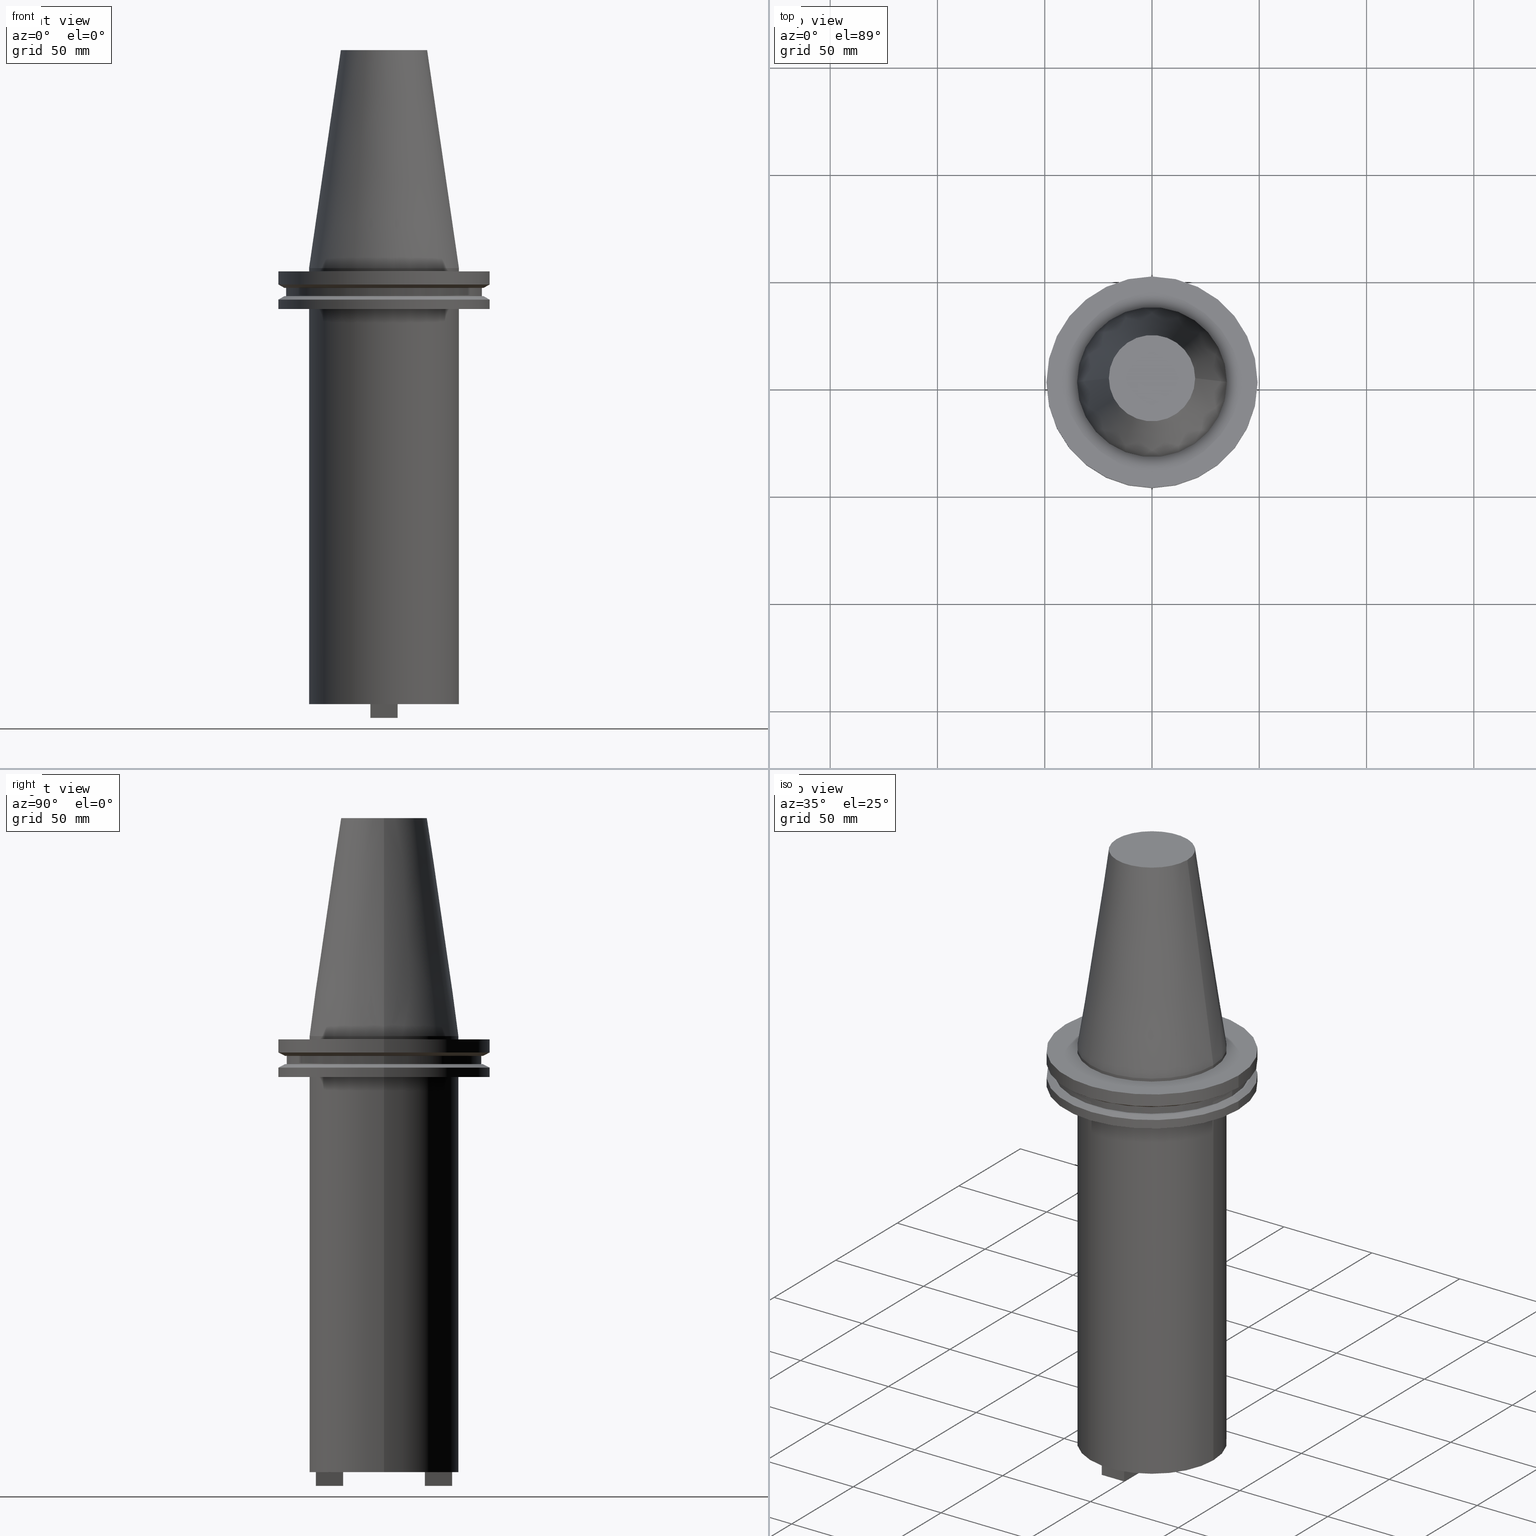
[diagram: canonical four-view strip — front | top / right | iso, engineering-drawing reading convention]
A machine part, canonical four-view strip (front | top / right | iso — engineering-drawing reading convention). The complete STEP part file that produces these views, byte-faithful:
ISO-10303-21;
HEADER;
FILE_DESCRIPTION (( 'STEP AP203' ),
    '1' );
FILE_NAME ('BCV50-SMC1_250-8.stp',
    '2022-03-03T20:05:46',
    ( '' ),
    ( '' ),
    'SwSTEP 2.0',
    'SolidWorks 2021',
    '' );
FILE_SCHEMA (( 'CONFIG_CONTROL_DESIGN' ));
ENDSEC;

DATA;
#1 = LINE ( 'NONE', #615, #362 ) ;
#2 = CARTESIAN_POINT ( 'NONE',  ( 0.000000000000000000, 0.000000000000000000, -14.65761014474876944 ) ) ;
#3 = ORIENTED_EDGE ( 'NONE', *, *, #798, .F. ) ;
#4 = EDGE_CURVE ( 'NONE', #567, #404, #360, .T. ) ;
#5 = VECTOR ( 'NONE', #45, 1000.000000000000000 ) ;
#6 = AXIS2_PLACEMENT_3D ( 'NONE', #751, #120, #338 ) ;
#7 = DIRECTION ( 'NONE',  ( -0.000000000000000000, -0.000000000000000000, 1.000000000000000000 ) ) ;
#8 = VECTOR ( 'NONE', #967, 1000.000000000000000 ) ;
#9 = VECTOR ( 'NONE', #335, 1000.000000000000000 ) ;
#10 = DIRECTION ( 'NONE',  ( 1.000000000000000000, 0.000000000000000000, 0.000000000000000000 ) ) ;
#11 = EDGE_LOOP ( 'NONE', ( #42, #703, #473, #479 ) ) ;
#12 = EDGE_CURVE ( 'NONE', #198, #793, #266, .T. ) ;
#13 = LINE ( 'NONE', #21, #654 ) ;
#14 = CARTESIAN_POINT ( 'NONE',  ( 49.21499999999998920, 0.000000000000000000, -19.04999999999999716 ) ) ;
#15 = ORIENTED_EDGE ( 'NONE', *, *, #228, .T. ) ;
#16 = VERTEX_POINT ( 'NONE', #131 ) ;
#17 = DIRECTION ( 'NONE',  ( 0.000000000000000000, 0.000000000000000000, -1.000000000000000000 ) ) ;
#18 = CARTESIAN_POINT ( 'NONE',  ( 46.43919780457007818, 0.000000000000000000, -9.204999999999991189 ) ) ;
#19 = ORIENTED_EDGE ( 'NONE', *, *, #933, .T. ) ;
#20 = ORIENTED_EDGE ( 'NONE', *, *, #533, .T. ) ;
#21 = CARTESIAN_POINT ( 'NONE',  ( 6.349999999999984546, -31.75000000000000711, -209.5999999999999943 ) ) ;
#22 = AXIS2_PLACEMENT_3D ( 'NONE', #207, #974, #273 ) ;
#23 = EDGE_CURVE ( 'NONE', #920, #854, #112, .T. ) ;
#24 = CARTESIAN_POINT ( 'NONE',  ( 46.43919780457007818, 5.857130358318725715E-15, -13.05499999999999794 ) ) ;
#25 = CIRCLE ( 'NONE', #596, 34.92499999999999716 ) ;
#26 = EDGE_LOOP ( 'NONE', ( #91, #361, #368, #815 ) ) ;
#27 = ORIENTED_EDGE ( 'NONE', *, *, #855, .T. ) ;
#28 = DIRECTION ( 'NONE',  ( 0.000000000000000000, -0.000000000000000000, 1.000000000000000000 ) ) ;
#29 = DIRECTION ( 'NONE',  ( 1.365923996832130130E-16, 1.000000000000000000, 0.000000000000000000 ) ) ;
#30 = EDGE_CURVE ( 'NONE', #558, #122, #46, .T. ) ;
#31 = EDGE_LOOP ( 'NONE', ( #562, #276, #829, #659 ) ) ;
#32 = CARTESIAN_POINT ( 'NONE',  ( 0.000000000000000000, 0.000000000000000000, 101.5999999999999943 ) ) ;
#33 = DIRECTION ( 'NONE',  ( 0.000000000000000000, -0.000000000000000000, 1.000000000000000000 ) ) ;
#34 = DIRECTION ( 'NONE',  ( -0.000000000000000000, -0.000000000000000000, 1.000000000000000000 ) ) ;
#35 = ADVANCED_FACE ( 'NONE', ( #209 ), #438, .T. ) ;
#36 = ORIENTED_EDGE ( 'NONE', *, *, #205, .F. ) ;
#37 = CARTESIAN_POINT ( 'NONE',  ( -6.350000000000003197, 19.04999999999999716, -209.5999999999999943 ) ) ;
#38 = CARTESIAN_POINT ( 'NONE',  ( 6.349999999999994316, 19.05000000000000426, -209.5999999999999943 ) ) ;
#39 = PRODUCT_DEFINITION_FORMATION_WITH_SPECIFIED_SOURCE ( 'ANY', '', #805, .NOT_KNOWN. ) ;
#40 = DIRECTION ( 'NONE',  ( 1.000000000000000000, 0.000000000000000000, 0.000000000000000000 ) ) ;
#41 = CIRCLE ( 'NONE', #889, 7.340000000000006075 ) ;
#42 = ORIENTED_EDGE ( 'NONE', *, *, #568, .T. ) ;
#43 = ADVANCED_FACE ( 'NONE', ( #653 ), #749, .F. ) ;
#44 = CARTESIAN_POINT ( 'NONE',  ( 0.000000000000000000, 0.000000000000000000, -7.602389855251287187 ) ) ;
#45 = DIRECTION ( 'NONE',  ( -0.000000000000000000, -0.000000000000000000, 1.000000000000000000 ) ) ;
#46 = LINE ( 'NONE', #662, #809 ) ;
#47 = EDGE_LOOP ( 'NONE', ( #783, #580, #386, #882 ) ) ;
#48 = FACE_BOUND ( 'NONE', #377, .T. ) ;
#49 = DIRECTION ( 'NONE',  ( 1.000000000000000000, 0.000000000000000000, 0.000000000000000000 ) ) ;
#50 = CARTESIAN_POINT ( 'NONE',  ( -6.350000000000004974, 31.75000000000000000, -209.5999999999999943 ) ) ;
#51 = ORIENTED_EDGE ( 'NONE', *, *, #734, .F. ) ;
#52 = CARTESIAN_POINT ( 'NONE',  ( 6.349999999999992539, 31.75000000000000000, -209.5999999999999943 ) ) ;
#53 = EDGE_CURVE ( 'NONE', #793, #198, #627, .T. ) ;
#54 = EDGE_LOOP ( 'NONE', ( #636, #373, #725, #20 ) ) ;
#55 = VECTOR ( 'NONE', #852, 1000.000000000000000 ) ;
#56 = VECTOR ( 'NONE', #582, 1000.000000000000000 ) ;
#57 = ORIENTED_EDGE ( 'NONE', *, *, #697, .T. ) ;
#58 = AXIS2_PLACEMENT_3D ( 'NONE', #379, #451, #302 ) ;
#59 = VECTOR ( 'NONE', #99, 1000.000000000000000 ) ;
#60 = DATE_AND_TIME ( #670, #574 ) ;
#61 = DIRECTION ( 'NONE',  ( 1.365923996832132102E-16, -1.000000000000000000, 0.000000000000000000 ) ) ;
#62 = DIRECTION ( 'NONE',  ( 0.000000000000000000, 0.000000000000000000, -1.000000000000000000 ) ) ;
#63 = ORIENTED_EDGE ( 'NONE', *, *, #946, .F. ) ;
#64 = DIRECTION ( 'NONE',  ( -0.000000000000000000, -0.000000000000000000, 1.000000000000000000 ) ) ;
#65 = CARTESIAN_POINT ( 'NONE',  ( 0.000000000000000000, 0.000000000000000000, 101.5999999999999801 ) ) ;
#66 = ORIENTED_EDGE ( 'NONE', *, *, #336, .T. ) ;
#67 = DIRECTION ( 'NONE',  ( 1.000000000000000000, 0.000000000000000000, 0.000000000000000000 ) ) ;
#68 = DIRECTION ( 'NONE',  ( -0.000000000000000000, -0.000000000000000000, 1.000000000000000000 ) ) ;
#69 = CARTESIAN_POINT ( 'NONE',  ( -34.92499999999999716, 4.277078946022130887E-15, -19.04999999999999716 ) ) ;
#70 = VERTEX_POINT ( 'NONE', #518 ) ;
#71 = VECTOR ( 'NONE', #199, 1000.000000000000000 ) ;
#72 = AXIS2_PLACEMENT_3D ( 'NONE', #868, #871, #947 ) ;
#73 = APPROVAL_DATE_TIME ( #774, #622 ) ;
#74 = EDGE_CURVE ( 'NONE', #591, #214, #344, .T. ) ;
#75 = AXIS2_PLACEMENT_3D ( 'NONE', #319, #253, #632 ) ;
#76 = LINE ( 'NONE', #137, #936 ) ;
#77 = CARTESIAN_POINT ( 'NONE',  ( 0.000000000000000000, 0.000000000000000000, -203.1999999999999886 ) ) ;
#78 = ORIENTED_EDGE ( 'NONE', *, *, #1007, .T. ) ;
#79 = EDGE_CURVE ( 'NONE', #905, #404, #282, .T. ) ;
#80 = FACE_OUTER_BOUND ( 'NONE', #571, .T. ) ;
#81 = EDGE_CURVE ( 'NONE', #854, #117, #288, .T. ) ;
#82 = FACE_OUTER_BOUND ( 'NONE', #448, .T. ) ;
#83 = VERTEX_POINT ( 'NONE', #834 ) ;
#84 = DIRECTION ( 'NONE',  ( 1.000000000000000000, 0.000000000000000000, 0.000000000000000000 ) ) ;
#85 = CARTESIAN_POINT ( 'NONE',  ( 6.349999999999994316, 19.05000000000000426, -209.5999999999999943 ) ) ;
#86 = EDGE_CURVE ( 'NONE', #920, #325, #501, .T. ) ;
#87 = ORIENTED_EDGE ( 'NONE', *, *, #798, .T. ) ;
#88 = LINE ( 'NONE', #413, #841 ) ;
#89 = CIRCLE ( 'NONE', #873, 49.21499999999999631 ) ;
#90 = DIRECTION ( 'NONE',  ( 1.000000000000000000, -1.092739197465706668E-15, 0.000000000000000000 ) ) ;
#91 = ORIENTED_EDGE ( 'NONE', *, *, #513, .T. ) ;
#92 = EDGE_LOOP ( 'NONE', ( #735, #814, #497, #188 ) ) ;
#93 = FACE_OUTER_BOUND ( 'NONE', #409, .T. ) ;
#94 = FACE_OUTER_BOUND ( 'NONE', #355, .T. ) ;
#95 = ORIENTED_EDGE ( 'NONE', *, *, #872, .F. ) ;
#96 = DIRECTION ( 'NONE',  ( 1.000000000000000000, 0.000000000000000000, 0.000000000000000000 ) ) ;
#97 = CARTESIAN_POINT ( 'NONE',  ( -6.350000000000003197, 19.04999999999999716, -203.1999999999999886 ) ) ;
#98 = ORIENTED_EDGE ( 'NONE', *, *, #81, .T. ) ;
#99 = DIRECTION ( 'NONE',  ( -0.000000000000000000, -0.000000000000000000, 1.000000000000000000 ) ) ;
#100 = EDGE_CURVE ( 'NONE', #193, #647, #203, .T. ) ;
#101 = VECTOR ( 'NONE', #548, 1000.000000000000000 ) ;
#102 = CARTESIAN_POINT ( 'NONE',  ( 0.000000000000000000, 0.000000000000000000, 101.5999999999999943 ) ) ;
#103 = AXIS2_PLACEMENT_3D ( 'NONE', #385, #782, #542 ) ;
#104 = AXIS2_PLACEMENT_3D ( 'NONE', #961, #553, #200 ) ;
#105 = ORIENTED_EDGE ( 'NONE', *, *, #74, .T. ) ;
#106 = DIRECTION ( 'NONE',  ( 1.000000000000000000, 0.000000000000000000, 0.000000000000000000 ) ) ;
#107 = CARTESIAN_POINT ( 'NONE',  ( 6.349999999999984546, -31.75000000000001421, -203.1999999999999886 ) ) ;
#108 = ADVANCED_FACE ( 'NONE', ( #658, #213 ), #423, .F. ) ;
#109 = ORIENTED_EDGE ( 'NONE', *, *, #313, .F. ) ;
#110 = DIRECTION ( 'NONE',  ( 1.000000000000000000, -1.092739197465706471E-15, -0.000000000000000000 ) ) ;
#111 = CARTESIAN_POINT ( 'NONE',  ( 0.000000000000000000, 0.000000000000000000, -203.1999999999999886 ) ) ;
#112 = LINE ( 'NONE', #666, #826 ) ;
#113 = EDGE_CURVE ( 'NONE', #647, #613, #316, .T. ) ;
#114 = EDGE_LOOP ( 'NONE', ( #491, #285, #686, #346 ) ) ;
#115 = CARTESIAN_POINT ( 'NONE',  ( 6.349999999999992539, 31.75000000000000000, -209.5999999999999943 ) ) ;
#116 = CARTESIAN_POINT ( 'NONE',  ( 0.000000000000000000, 0.000000000000000000, 0.000000000000000000 ) ) ;
#117 = VERTEX_POINT ( 'NONE', #585 ) ;
#118 = AXIS2_PLACEMENT_3D ( 'NONE', #50, #446, #909 ) ;
#119 = EDGE_LOOP ( 'NONE', ( #830, #663, #128, #419 ) ) ;
#120 = DIRECTION ( 'NONE',  ( -0.000000000000000000, -0.000000000000000000, 1.000000000000000000 ) ) ;
#121 = CARTESIAN_POINT ( 'NONE',  ( -6.350000000000004974, -31.75000000000000711, -209.5999999999999943 ) ) ;
#122 = VERTEX_POINT ( 'NONE', #350 ) ;
#123 = EDGE_LOOP ( 'NONE', ( #607, #599 ) ) ;
#124 = DIRECTION ( 'NONE',  ( -0.000000000000000000, -0.000000000000000000, 1.000000000000000000 ) ) ;
#125 = ADVANCED_FACE ( 'NONE', ( #1003 ), #536, .T. ) ;
#126 = CARTESIAN_POINT ( 'NONE',  ( 6.349999999999984546, -19.05000000000001137, -203.1999999999999886 ) ) ;
#127 = DIRECTION ( 'NONE',  ( -1.365923996832131116E-16, 1.000000000000000000, -0.000000000000000000 ) ) ;
#128 = ORIENTED_EDGE ( 'NONE', *, *, #996, .T. ) ;
#129 = PERSON_AND_ORGANIZATION ( #474, #315 ) ;
#130 = CARTESIAN_POINT ( 'NONE',  ( 34.92499999999999005, 4.277078946022130098E-15, 0.000000000000000000 ) ) ;
#131 = CARTESIAN_POINT ( 'NONE',  ( 49.21499999999999631, 0.000000000000000000, -1.499999999999987566 ) ) ;
#132 = CIRCLE ( 'NONE', #312, 34.92499999999999005 ) ;
#133 = CC_DESIGN_APPROVAL ( #364, ( #39 ) ) ;
#134 = ORIENTED_EDGE ( 'NONE', *, *, #917, .F. ) ;
#135 = AXIS2_PLACEMENT_3D ( 'NONE', #65, #621, #861 ) ;
#136 = DATE_AND_TIME ( #449, #234 ) ;
#137 = CARTESIAN_POINT ( 'NONE',  ( 6.349999999999984546, -19.05000000000000782, -209.5999999999999943 ) ) ;
#138 = DIRECTION ( 'NONE',  ( -0.000000000000000000, -0.000000000000000000, 1.000000000000000000 ) ) ;
#139 = EDGE_LOOP ( 'NONE', ( #847, #157, #95, #57 ) ) ;
#140 = CALENDAR_DATE ( 2022, 3, 3 ) ;
#141 = PLANE ( 'NONE',  #673 ) ;
#142 = CARTESIAN_POINT ( 'NONE',  ( 0.000000000000000000, 0.000000000000000000, -1.499999999999987566 ) ) ;
#143 = EDGE_CURVE ( 'NONE', #16, #890, #89, .T. ) ;
#144 = ORIENTED_EDGE ( 'NONE', *, *, #358, .T. ) ;
#145 = PERSON_AND_ORGANIZATION ( #474, #315 ) ;
#146 = FACE_OUTER_BOUND ( 'NONE', #11, .T. ) ;
#147 = DIRECTION ( 'NONE',  ( 1.000000000000000000, 0.000000000000000000, 0.000000000000000000 ) ) ;
#148 = CIRCLE ( 'NONE', #546, 34.92499999999999716 ) ;
#149 = ORIENTED_EDGE ( 'NONE', *, *, #4, .T. ) ;
#150 = AXIS2_PLACEMENT_3D ( 'NONE', #945, #870, #875 ) ;
#151 = CC_DESIGN_PERSON_AND_ORGANIZATION_ASSIGNMENT ( #856, #757, ( #39 ) ) ;
#152 = CIRCLE ( 'NONE', #202, 49.21499999999999631 ) ;
#153 = DATE_TIME_ROLE ( 'creation_date' ) ;
#154 = AXIS2_PLACEMENT_3D ( 'NONE', #788, #240, #318 ) ;
#155 = CARTESIAN_POINT ( 'NONE',  ( -46.43919780457007818, 5.857130358318727293E-15, -9.204999999999991189 ) ) ;
#156 = PLANE ( 'NONE',  #331 ) ;
#157 = ORIENTED_EDGE ( 'NONE', *, *, #86, .F. ) ;
#158 = PRODUCT_DEFINITION_SHAPE ( 'NONE', 'NONE',  #547 ) ;
#159 = FACE_OUTER_BOUND ( 'NONE', #502, .T. ) ;
#160 = EDGE_CURVE ( 'NONE', #390, #538, #778, .T. ) ;
#161 = LINE ( 'NONE', #468, #219 ) ;
#162 = ORIENTED_EDGE ( 'NONE', *, *, #583, .T. ) ;
#163 = DIRECTION ( 'NONE',  ( 1.000000000000000000, 0.000000000000000000, 0.000000000000000000 ) ) ;
#164 = ADVANCED_FACE ( 'NONE', ( #612 ), #186, .T. ) ;
#165 = DIRECTION ( 'NONE',  ( 0.8660254037844273833, 0.000000000000000000, 0.5000000000000195399 ) ) ;
#166 = ORIENTED_EDGE ( 'NONE', *, *, #655, .T. ) ;
#167 = ORIENTED_EDGE ( 'NONE', *, *, #372, .F. ) ;
#168 = CIRCLE ( 'NONE', #689, 34.92499999999999005 ) ;
#169 = DIRECTION ( 'NONE',  ( -0.000000000000000000, -0.000000000000000000, 1.000000000000000000 ) ) ;
#170 = CIRCLE ( 'NONE', #559, 49.21500000000000341 ) ;
#171 = LINE ( 'NONE', #18, #668 ) ;
#172 = VERTEX_POINT ( 'NONE', #846 ) ;
#173 = EDGE_CURVE ( 'NONE', #289, #869, #41, .T. ) ;
#174 = FACE_OUTER_BOUND ( 'NONE', #713, .T. ) ;
#175 = LINE ( 'NONE', #328, #333 ) ;
#176 = ORIENTED_EDGE ( 'NONE', *, *, #456, .T. ) ;
#177 = EDGE_CURVE ( 'NONE', #869, #289, #427, .T. ) ;
#178 = ORIENTED_EDGE ( 'NONE', *, *, #53, .F. ) ;
#179 = DIRECTION ( 'NONE',  ( -1.000000000000000000, 0.000000000000000000, -0.000000000000000000 ) ) ;
#180 = LINE ( 'NONE', #408, #511 ) ;
#181 = ORIENTED_EDGE ( 'NONE', *, *, #388, .T. ) ;
#182 = AXIS2_PLACEMENT_3D ( 'NONE', #310, #521, #61 ) ;
#183 = DIRECTION ( 'NONE',  ( 1.000000000000000000, 0.000000000000000000, 0.000000000000000000 ) ) ;
#184 =( GEOMETRIC_REPRESENTATION_CONTEXT ( 3 ) GLOBAL_UNCERTAINTY_ASSIGNED_CONTEXT ( ( #258 ) ) GLOBAL_UNIT_ASSIGNED_CONTEXT ( ( #694, #836, #842 ) ) REPRESENTATION_CONTEXT ( 'NONE', 'WORKASPACE' ) );
#185 = PLANE ( 'NONE',  #284 ) ;
#186 = CONICAL_SURFACE ( 'NONE', #691, 49.21499999999998920, 1.047197551196554333 ) ;
#187 = EDGE_LOOP ( 'NONE', ( #78, #801, #959, #797 ) ) ;
#188 = ORIENTED_EDGE ( 'NONE', *, *, #616, .T. ) ;
#189 = CARTESIAN_POINT ( 'NONE',  ( 6.349999999999984546, -19.05000000000000782, -203.1999999999999886 ) ) ;
#190 = EDGE_CURVE ( 'NONE', #545, #558, #161, .T. ) ;
#191 = DIRECTION ( 'NONE',  ( -1.000000000000000000, 0.000000000000000000, 0.000000000000000000 ) ) ;
#192 = DIRECTION ( 'NONE',  ( -0.8660254037844169472, 0.000000000000000000, -0.5000000000000375255 ) ) ;
#193 = VERTEX_POINT ( 'NONE', #850 ) ;
#194 = PLANE ( 'NONE',  #904 ) ;
#195 = LINE ( 'NONE', #52, #232 ) ;
#196 = CC_DESIGN_PERSON_AND_ORGANIZATION_ASSIGNMENT ( #927, #922, ( #805 ) ) ;
#197 = CARTESIAN_POINT ( 'NONE',  ( 0.000000000000000000, 0.000000000000000000, -9.204999999999991189 ) ) ;
#198 = VERTEX_POINT ( 'NONE', #929 ) ;
#199 = DIRECTION ( 'NONE',  ( -0.000000000000000000, -0.000000000000000000, 1.000000000000000000 ) ) ;
#200 = DIRECTION ( 'NONE',  ( 1.000000000000000000, 0.000000000000000000, 0.000000000000000000 ) ) ;
#201 = VECTOR ( 'NONE', #110, 1000.000000000000000 ) ;
#202 = AXIS2_PLACEMENT_3D ( 'NONE', #919, #940, #701 ) ;
#203 = LINE ( 'NONE', #602, #906 ) ;
#204 = VECTOR ( 'NONE', #68, 1000.000000000000000 ) ;
#205 = EDGE_CURVE ( 'NONE', #356, #567, #843, .T. ) ;
#206 = ORIENTED_EDGE ( 'NONE', *, *, #646, .T. ) ;
#207 = CARTESIAN_POINT ( 'NONE',  ( 0.000000000000000000, 49.21499999999998920, -19.04999999999999716 ) ) ;
#208 = LINE ( 'NONE', #270, #810 ) ;
#209 = FACE_OUTER_BOUND ( 'NONE', #710, .T. ) ;
#210 = ORIENTED_EDGE ( 'NONE', *, *, #537, .T. ) ;
#211 = EDGE_CURVE ( 'NONE', #567, #356, #758, .T. ) ;
#212 = DIRECTION ( 'NONE',  ( 1.000000000000000000, 0.000000000000000000, 0.000000000000000000 ) ) ;
#213 = FACE_OUTER_BOUND ( 'NONE', #123, .T. ) ;
#214 = VERTEX_POINT ( 'NONE', #311 ) ;
#215 = APPROVAL_STATUS ( 'not_yet_approved' ) ;
#216 = CARTESIAN_POINT ( 'NONE',  ( -6.350000000000003197, -19.04999999999999361, -209.5999999999999943 ) ) ;
#217 = FACE_OUTER_BOUND ( 'NONE', #31, .T. ) ;
#218 = ORIENTED_EDGE ( 'NONE', *, *, #74, .F. ) ;
#219 = VECTOR ( 'NONE', #763, 1000.000000000000000 ) ;
#220 = CALENDAR_DATE ( 2022, 3, 3 ) ;
#221 = DIRECTION ( 'NONE',  ( -0.000000000000000000, -0.000000000000000000, 1.000000000000000000 ) ) ;
#222 = ADVANCED_FACE ( 'NONE', ( #932 ), #371, .T. ) ;
#223 = CARTESIAN_POINT ( 'NONE',  ( 0.000000000000000000, 0.000000000000000000, 101.5999999999999943 ) ) ;
#224 = ORIENTED_EDGE ( 'NONE', *, *, #675, .T. ) ;
#225 = DIRECTION ( 'NONE',  ( 1.000000000000000000, 0.000000000000000000, 0.000000000000000000 ) ) ;
#226 = CYLINDRICAL_SURFACE ( 'NONE', #923, 49.21499999999998920 ) ;
#227 = EDGE_LOOP ( 'NONE', ( #469, #808, #717, #63 ) ) ;
#228 = EDGE_CURVE ( 'NONE', #745, #851, #724, .T. ) ;
#229 = COORDINATED_UNIVERSAL_TIME_OFFSET ( 6, 0, .BEHIND. ) ;
#230 = CARTESIAN_POINT ( 'NONE',  ( -6.350000000000003197, -19.04999999999999361, -209.5999999999999943 ) ) ;
#231 = DIRECTION ( 'NONE',  ( 0.8660254037844169472, 1.060575238724880168E-16, -0.5000000000000375255 ) ) ;
#232 = VECTOR ( 'NONE', #595, 1000.000000000000000 ) ;
#233 = VERTEX_POINT ( 'NONE', #925 ) ;
#234 = LOCAL_TIME ( 14, 5, 46.00000000000000000, #912 ) ;
#235 = ADVANCED_FACE ( 'NONE', ( #376, #82 ), #156, .F. ) ;
#236 = AXIS2_PLACEMENT_3D ( 'NONE', #738, #505, #40 ) ;
#237 = AXIS2_PLACEMENT_3D ( 'NONE', #731, #33, #343 ) ;
#238 = DIRECTION ( 'NONE',  ( -0.000000000000000000, -0.000000000000000000, 1.000000000000000000 ) ) ;
#239 = EDGE_LOOP ( 'NONE', ( #723, #210, #176, #779 ) ) ;
#240 = DIRECTION ( 'NONE',  ( -0.000000000000000000, -0.000000000000000000, 1.000000000000000000 ) ) ;
#241 = DIRECTION ( 'NONE',  ( 1.000000000000000000, 0.000000000000000000, 0.000000000000000000 ) ) ;
#242 = EDGE_LOOP ( 'NONE', ( #787, #603 ) ) ;
#243 = DIRECTION ( 'NONE',  ( -0.000000000000000000, -0.000000000000000000, 1.000000000000000000 ) ) ;
#244 = CYLINDRICAL_SURFACE ( 'NONE', #410, 49.21499999999998920 ) ;
#245 = ORIENTED_EDGE ( 'NONE', *, *, #583, .F. ) ;
#246 = ORIENTED_EDGE ( 'NONE', *, *, #307, .T. ) ;
#247 = CIRCLE ( 'NONE', #985, 20.10819343178871321 ) ;
#248 = DIRECTION ( 'NONE',  ( -0.000000000000000000, -0.000000000000000000, 1.000000000000000000 ) ) ;
#249 = DIRECTION ( 'NONE',  ( -0.000000000000000000, -0.000000000000000000, 1.000000000000000000 ) ) ;
#250 = EDGE_CURVE ( 'NONE', #890, #16, #152, .T. ) ;
#251 = VERTEX_POINT ( 'NONE', #69 ) ;
#252 = CARTESIAN_POINT ( 'NONE',  ( -20.10819343178871321, 0.000000000000000000, 101.5999999999999801 ) ) ;
#253 = DIRECTION ( 'NONE',  ( 1.000000000000000000, -1.365923996832130130E-16, 0.000000000000000000 ) ) ;
#254 = ADVANCED_FACE ( 'NONE', ( #217 ), #226, .T. ) ;
#255 = ORIENTED_EDGE ( 'NONE', *, *, #879, .T. ) ;
#256 = EDGE_LOOP ( 'NONE', ( #650, #564 ) ) ;
#257 = DIRECTION ( 'NONE',  ( -1.000000000000000000, 0.000000000000000000, 0.000000000000000000 ) ) ;
#258 = UNCERTAINTY_MEASURE_WITH_UNIT (LENGTH_MEASURE( 1.000000000000000082E-05 ), #694, 'distance_accuracy_value', 'NONE');
#259 = LINE ( 'NONE', #804, #281 ) ;
#260 = ORIENTED_EDGE ( 'NONE', *, *, #100, .F. ) ;
#261 = EDGE_CURVE ( 'NONE', #404, #538, #611, .T. ) ;
#262 = VECTOR ( 'NONE', #290, 1000.000000000000000 ) ;
#263 = CARTESIAN_POINT ( 'NONE',  ( 0.000000000000000000, 34.92499999999999716, -203.1999999999999886 ) ) ;
#264 = AXIS2_PLACEMENT_3D ( 'NONE', #916, #300, #614 ) ;
#265 = LINE ( 'NONE', #531, #262 ) ;
#266 = CIRCLE ( 'NONE', #859, 45.64500000000000313 ) ;
#267 = DIRECTION ( 'NONE',  ( 1.000000000000000000, 0.000000000000000000, 0.000000000000000000 ) ) ;
#268 = ORIENTED_EDGE ( 'NONE', *, *, #838, .T. ) ;
#269 = CARTESIAN_POINT ( 'NONE',  ( -46.43919780457007818, 0.000000000000000000, -13.05499999999999794 ) ) ;
#270 = CARTESIAN_POINT ( 'NONE',  ( 34.92499999999999005, 4.277078946022130098E-15, 0.000000000000000000 ) ) ;
#271 = CARTESIAN_POINT ( 'NONE',  ( 0.000000000000000000, 49.21499999999999631, -1.499999999999992895 ) ) ;
#272 = ORIENTED_EDGE ( 'NONE', *, *, #630, .F. ) ;
#273 = DIRECTION ( 'NONE',  ( 1.000000000000000000, 0.000000000000000000, 0.000000000000000000 ) ) ;
#274 = CARTESIAN_POINT ( 'NONE',  ( -7.339999999999985647, 8.988907505741556088E-16, 0.000000000000000000 ) ) ;
#275 = CARTESIAN_POINT ( 'NONE',  ( -49.21499999999998920, 6.027099222003697037E-15, 101.5999999999999943 ) ) ;
#276 = ORIENTED_EDGE ( 'NONE', *, *, #211, .T. ) ;
#277 = FACE_BOUND ( 'NONE', #227, .T. ) ;
#278 = AXIS2_PLACEMENT_3D ( 'NONE', #844, #64, #225 ) ;
#279 = DIRECTION ( 'NONE',  ( 1.000000000000000000, 0.000000000000000000, 0.000000000000000000 ) ) ;
#280 = AXIS2_PLACEMENT_3D ( 'NONE', #417, #730, #67 ) ;
#281 = VECTOR ( 'NONE', #29, 1000.000000000000000 ) ;
#282 = LINE ( 'NONE', #990, #938 ) ;
#283 = ADVANCED_FACE ( 'NONE', ( #459 ), #968, .T. ) ;
#284 = AXIS2_PLACEMENT_3D ( 'NONE', #496, #191, #901 ) ;
#285 = ORIENTED_EDGE ( 'NONE', *, *, #515, .T. ) ;
#286 = DATE_TIME_ROLE ( 'classification_date' ) ;
#287 = DIRECTION ( 'NONE',  ( 0.000000000000000000, 0.000000000000000000, -1.000000000000000000 ) ) ;
#288 = LINE ( 'NONE', #902, #671 ) ;
#289 = VERTEX_POINT ( 'NONE', #476 ) ;
#290 = DIRECTION ( 'NONE',  ( 1.365923996832132102E-16, -1.000000000000000000, 0.000000000000000000 ) ) ;
#291 = CARTESIAN_POINT ( 'NONE',  ( 0.000000000000000000, 0.000000000000000000, -19.04999999999999716 ) ) ;
#292 = VERTEX_POINT ( 'NONE', #706 ) ;
#293 = COORDINATED_UNIVERSAL_TIME_OFFSET ( 6, 0, .BEHIND. ) ;
#294 = ADVANCED_FACE ( 'NONE', ( #94 ), #800, .F. ) ;
#295 = FACE_OUTER_BOUND ( 'NONE', #366, .T. ) ;
#296 = CARTESIAN_POINT ( 'NONE',  ( 0.000000000000000000, 0.000000000000000000, 0.000000000000000000 ) ) ;
#297 = CC_DESIGN_SECURITY_CLASSIFICATION ( #739, ( #39 ) ) ;
#298 = EDGE_LOOP ( 'NONE', ( #429, #699 ) ) ;
#299 = AXIS2_PLACEMENT_3D ( 'NONE', #271, #522, #839 ) ;
#300 = DIRECTION ( 'NONE',  ( 0.000000000000000000, 0.000000000000000000, 1.000000000000000000 ) ) ;
#301 = CARTESIAN_POINT ( 'NONE',  ( 6.349999999999984546, -31.75000000000000711, -209.5999999999999943 ) ) ;
#302 = DIRECTION ( 'NONE',  ( 1.000000000000000000, 0.000000000000000000, 0.000000000000000000 ) ) ;
#303 = ORIENTED_EDGE ( 'NONE', *, *, #577, .F. ) ;
#304 = PERSON_AND_ORGANIZATION_ROLE ( 'creator' ) ;
#305 = DIRECTION ( 'NONE',  ( -0.000000000000000000, -0.000000000000000000, 1.000000000000000000 ) ) ;
#306 = DIRECTION ( 'NONE',  ( -0.000000000000000000, -0.000000000000000000, 1.000000000000000000 ) ) ;
#307 = EDGE_CURVE ( 'NONE', #769, #514, #953, .T. ) ;
#308 = ORIENTED_EDGE ( 'NONE', *, *, #883, .F. ) ;
#309 = DATE_AND_TIME ( #220, #395 ) ;
#310 = CARTESIAN_POINT ( 'NONE',  ( 6.349999999999992539, 31.75000000000000000, -209.5999999999999943 ) ) ;
#311 = CARTESIAN_POINT ( 'NONE',  ( 6.349999999999984546, -19.05000000000000782, -209.5999999999999943 ) ) ;
#312 = AXIS2_PLACEMENT_3D ( 'NONE', #672, #908, #822 ) ;
#313 = EDGE_CURVE ( 'NONE', #356, #538, #570, .T. ) ;
#314 = ORIENTED_EDGE ( 'NONE', *, *, #975, .F. ) ;
#315 = ORGANIZATION ( 'UNSPECIFIED', 'UNSPECIFIED', '' ) ;
#316 = CIRCLE ( 'NONE', #236, 34.92499999999999005 ) ;
#317 = AXIS2_PLACEMENT_3D ( 'NONE', #116, #893, #743 ) ;
#318 = DIRECTION ( 'NONE',  ( 1.000000000000000000, 0.000000000000000000, 0.000000000000000000 ) ) ;
#319 = CARTESIAN_POINT ( 'NONE',  ( -6.350000000000004974, -31.75000000000000711, -209.5999999999999943 ) ) ;
#320 = ORIENTED_EDGE ( 'NONE', *, *, #958, .T. ) ;
#321 = EDGE_CURVE ( 'NONE', #122, #986, #259, .T. ) ;
#322 = DIRECTION ( 'NONE',  ( -1.000000000000000000, 0.000000000000000000, 0.000000000000000000 ) ) ;
#323 = CARTESIAN_POINT ( 'NONE',  ( 0.000000000000000000, 0.000000000000000000, -7.602389855251287187 ) ) ;
#324 = VERTEX_POINT ( 'NONE', #85 ) ;
#325 = VERTEX_POINT ( 'NONE', #97 ) ;
#326 = CYLINDRICAL_SURFACE ( 'NONE', #629, 7.339999999999985647 ) ;
#327 = EDGE_CURVE ( 'NONE', #214, #70, #885, .T. ) ;
#328 = CARTESIAN_POINT ( 'NONE',  ( 6.349999999999992539, 31.75000000000000000, -209.5999999999999943 ) ) ;
#329 = EDGE_LOOP ( 'NONE', ( #835, #149, #434, #109 ) ) ;
#330 = CIRCLE ( 'NONE', #6, 34.92499999999999716 ) ;
#331 = AXIS2_PLACEMENT_3D ( 'NONE', #606, #62, #389 ) ;
#332 = FACE_OUTER_BOUND ( 'NONE', #978, .T. ) ;
#333 = VECTOR ( 'NONE', #485, 1000.000000000000000 ) ;
#334 = CC_DESIGN_DATE_AND_TIME_ASSIGNMENT ( #604, #153, ( #547 ) ) ;
#335 = DIRECTION ( 'NONE',  ( -0.8660254037844273833, 1.060575238724893110E-16, 0.5000000000000195399 ) ) ;
#336 = EDGE_CURVE ( 'NONE', #581, #452, #170, .T. ) ;
#337 = ORIENTED_EDGE ( 'NONE', *, *, #388, .F. ) ;
#338 = DIRECTION ( 'NONE',  ( 1.000000000000000000, 0.000000000000000000, 0.000000000000000000 ) ) ;
#339 = DIRECTION ( 'NONE',  ( -1.000000000000000000, -5.463695987328527423E-16, 0.000000000000000000 ) ) ;
#340 = ORIENTED_EDGE ( 'NONE', *, *, #747, .T. ) ;
#341 = EDGE_CURVE ( 'NONE', #618, #793, #180, .T. ) ;
#342 = DIRECTION ( 'NONE',  ( -0.000000000000000000, -0.000000000000000000, 1.000000000000000000 ) ) ;
#343 = DIRECTION ( 'NONE',  ( 1.000000000000000000, 0.000000000000000000, -0.000000000000000000 ) ) ;
#344 = LINE ( 'NONE', #512, #8 ) ;
#345 = PRODUCT_RELATED_PRODUCT_CATEGORY ( 'detail', '', ( #805 ) ) ;
#346 = ORIENTED_EDGE ( 'NONE', *, *, #444, .F. ) ;
#347 = AXIS2_PLACEMENT_3D ( 'NONE', #494, #811, #106 ) ;
#348 = CYLINDRICAL_SURFACE ( 'NONE', #951, 49.21499999999999631 ) ;
#349 = CARTESIAN_POINT ( 'NONE',  ( 0.000000000000000000, 0.000000000000000000, -209.5999999999999943 ) ) ;
#350 = CARTESIAN_POINT ( 'NONE',  ( -6.350000000000004974, -31.75000000000000711, -203.1999999999999886 ) ) ;
#351 = VERTEX_POINT ( 'NONE', #398 ) ;
#352 = PLANE ( 'NONE',  #22 ) ;
#353 = ADVANCED_FACE ( 'NONE', ( #635 ), #712, .F. ) ;
#354 = CARTESIAN_POINT ( 'NONE',  ( 6.349999999999992539, 31.75000000000000000, -203.1999999999999886 ) ) ;
#355 = EDGE_LOOP ( 'NONE', ( #677, #973, #218, #206 ) ) ;
#356 = VERTEX_POINT ( 'NONE', #14 ) ;
#357 = CARTESIAN_POINT ( 'NONE',  ( 34.92499999999999005, 0.000000000000000000, 101.5999999999999943 ) ) ;
#358 = EDGE_CURVE ( 'NONE', #390, #905, #643, .T. ) ;
#359 = FACE_OUTER_BOUND ( 'NONE', #92, .T. ) ;
#360 = LINE ( 'NONE', #275, #708 ) ;
#361 = ORIENTED_EDGE ( 'NONE', *, *, #727, .T. ) ;
#362 = VECTOR ( 'NONE', #375, 1000.000000000000000 ) ;
#363 = PLANE ( 'NONE',  #237 ) ;
#364 = APPROVAL ( #215, 'UNSPECIFIED' ) ;
#365 = AXIS2_PLACEMENT_3D ( 'NONE', #626, #306, #994 ) ;
#366 = EDGE_LOOP ( 'NONE', ( #51, #633 ) ) ;
#367 = AXIS2_PLACEMENT_3D ( 'NONE', #928, #998, #378 ) ;
#368 = ORIENTED_EDGE ( 'NONE', *, *, #984, .F. ) ;
#369 = PERSON_AND_ORGANIZATION ( #474, #315 ) ;
#370 = FACE_OUTER_BOUND ( 'NONE', #733, .T. ) ;
#371 = CYLINDRICAL_SURFACE ( 'NONE', #365, 34.92499999999999005 ) ;
#372 = EDGE_CURVE ( 'NONE', #117, #507, #402, .T. ) ;
#373 = ORIENTED_EDGE ( 'NONE', *, *, #646, .F. ) ;
#374 = PERSON_AND_ORGANIZATION ( #474, #315 ) ;
#375 = DIRECTION ( 'NONE',  ( -1.365923996832131116E-16, 1.000000000000000000, -0.000000000000000000 ) ) ;
#376 = FACE_BOUND ( 'NONE', #750, .T. ) ;
#377 = EDGE_LOOP ( 'NONE', ( #272, #744, #930, #167 ) ) ;
#378 = DIRECTION ( 'NONE',  ( 1.000000000000000000, 0.000000000000000000, 0.000000000000000000 ) ) ;
#379 = CARTESIAN_POINT ( 'NONE',  ( 0.000000000000000000, 0.000000000000000000, 101.5999999999999943 ) ) ;
#380 = AXIS2_PLACEMENT_3D ( 'NONE', #484, #481, #28 ) ;
#381 = EDGE_LOOP ( 'NONE', ( #911, #926, #874, #98 ) ) ;
#382 = APPLICATION_PROTOCOL_DEFINITION ( 'international standard', 'config_control_design', 1994, #762 ) ;
#383 = CARTESIAN_POINT ( 'NONE',  ( 0.000000000000000000, 0.000000000000000000, -13.05499999999999794 ) ) ;
#384 = ADVANCED_FACE ( 'NONE', ( #943 ), #244, .T. ) ;
#385 = CARTESIAN_POINT ( 'NONE',  ( 0.000000000000000000, 0.000000000000000000, -19.04999999999999716 ) ) ;
#386 = ORIENTED_EDGE ( 'NONE', *, *, #975, .T. ) ;
#387 = CARTESIAN_POINT ( 'NONE',  ( 0.000000000000000000, 0.000000000000000000, -9.204999999999991189 ) ) ;
#388 = EDGE_CURVE ( 'NONE', #292, #581, #171, .T. ) ;
#389 = DIRECTION ( 'NONE',  ( -1.000000000000000000, 0.000000000000000000, -0.000000000000000000 ) ) ;
#390 = VERTEX_POINT ( 'NONE', #24 ) ;
#391 = FACE_OUTER_BOUND ( 'NONE', #47, .T. ) ;
#392 = DIRECTION ( 'NONE',  ( -0.000000000000000000, -1.000000000000000000, -0.000000000000000000 ) ) ;
#393 = AXIS2_PLACEMENT_3D ( 'NONE', #950, #864, #397 ) ;
#394 = ORIENTED_EDGE ( 'NONE', *, *, #358, .F. ) ;
#395 = LOCAL_TIME ( 14, 5, 46.00000000000000000, #608 ) ;
#396 = AXIS2_PLACEMENT_3D ( 'NONE', #790, #472, #90 ) ;
#397 = DIRECTION ( 'NONE',  ( 1.000000000000000000, 0.000000000000000000, 0.000000000000000000 ) ) ;
#398 = CARTESIAN_POINT ( 'NONE',  ( 6.349999999999992539, 31.75000000000000000, -209.5999999999999943 ) ) ;
#399 = ORIENTED_EDGE ( 'NONE', *, *, #910, .T. ) ;
#400 = EDGE_CURVE ( 'NONE', #642, #452, #482, .T. ) ;
#401 = CARTESIAN_POINT ( 'NONE',  ( 7.339999999999985647, 0.000000000000000000, -35.04999999999999716 ) ) ;
#402 = LINE ( 'NONE', #715, #594 ) ;
#403 = EDGE_LOOP ( 'NONE', ( #1009, #995 ) ) ;
#404 = VERTEX_POINT ( 'NONE', #876 ) ;
#405 = SHAPE_DEFINITION_REPRESENTATION ( #158, #732 ) ;
#406 = DIRECTION ( 'NONE',  ( 1.000000000000000000, 0.000000000000000000, 0.000000000000000000 ) ) ;
#407 = EDGE_CURVE ( 'NONE', #351, #507, #175, .T. ) ;
#408 = CARTESIAN_POINT ( 'NONE',  ( -45.64500000000000313, 5.589900314708094957E-15, 101.5999999999999943 ) ) ;
#409 = EDGE_LOOP ( 'NONE', ( #268, #15 ) ) ;
#410 = AXIS2_PLACEMENT_3D ( 'NONE', #102, #249, #241 ) ;
#411 = APPROVAL_PERSON_ORGANIZATION ( #145, #622, #848 ) ;
#412 = AXIS2_PLACEMENT_3D ( 'NONE', #291, #772, #1008 ) ;
#413 = CARTESIAN_POINT ( 'NONE',  ( 34.92499999999999716, 0.000000000000000000, 101.5999999999999943 ) ) ;
#414 = EDGE_CURVE ( 'NONE', #862, #325, #415, .T. ) ;
#415 = LINE ( 'NONE', #728, #760 ) ;
#416 = ORIENTED_EDGE ( 'NONE', *, *, #675, .F. ) ;
#417 = CARTESIAN_POINT ( 'NONE',  ( 0.000000000000000000, 0.000000000000000000, -13.05499999999999794 ) ) ;
#418 = FACE_OUTER_BOUND ( 'NONE', #139, .T. ) ;
#419 = ORIENTED_EDGE ( 'NONE', *, *, #910, .F. ) ;
#420 = ORIENTED_EDGE ( 'NONE', *, *, #81, .F. ) ;
#421 = DIRECTION ( 'NONE',  ( -0.000000000000000000, -0.000000000000000000, 1.000000000000000000 ) ) ;
#422 = DIRECTION ( 'NONE',  ( 0.1443082272672999988, 1.767266086135277066E-17, -0.9895327864921755756 ) ) ;
#423 = PLANE ( 'NONE',  #299 ) ;
#424 = ORIENTED_EDGE ( 'NONE', *, *, #436, .T. ) ;
#425 = DIRECTION ( 'NONE',  ( 1.000000000000000000, 0.000000000000000000, 0.000000000000000000 ) ) ;
#426 = FACE_OUTER_BOUND ( 'NONE', #628, .T. ) ;
#427 = CIRCLE ( 'NONE', #445, 7.340000000000006075 ) ;
#428 = DIRECTION ( 'NONE',  ( -0.000000000000000000, -0.000000000000000000, 1.000000000000000000 ) ) ;
#429 = ORIENTED_EDGE ( 'NONE', *, *, #984, .T. ) ;
#430 = ADVANCED_FACE ( 'NONE', ( #796 ), #649, .T. ) ;
#431 = CARTESIAN_POINT ( 'NONE',  ( 0.000000000000000000, 0.000000000000000000, -1.499999999999987566 ) ) ;
#432 = DIRECTION ( 'NONE',  ( 1.000000000000000000, -0.000000000000000000, -0.000000000000000000 ) ) ;
#433 = ORIENTED_EDGE ( 'NONE', *, *, #838, .F. ) ;
#434 = ORIENTED_EDGE ( 'NONE', *, *, #655, .F. ) ;
#435 = CARTESIAN_POINT ( 'NONE',  ( 45.64500000000000313, 0.000000000000000000, 101.5999999999999943 ) ) ;
#436 = EDGE_CURVE ( 'NONE', #693, #591, #657, .T. ) ;
#437 = DIRECTION ( 'NONE',  ( -0.000000000000000000, -0.000000000000000000, 1.000000000000000000 ) ) ;
#438 = CYLINDRICAL_SURFACE ( 'NONE', #792, 45.64500000000000313 ) ;
#439 = ORIENTED_EDGE ( 'NONE', *, *, #444, .T. ) ;
#440 = PERSON_AND_ORGANIZATION_ROLE ( 'classification_officer' ) ;
#441 = CIRCLE ( 'NONE', #154, 46.43919780457007818 ) ;
#442 = FACE_OUTER_BOUND ( 'NONE', #114, .T. ) ;
#443 = VECTOR ( 'NONE', #124, 1000.000000000000000 ) ;
#444 = EDGE_CURVE ( 'NONE', #851, #647, #588, .T. ) ;
#445 = AXIS2_PLACEMENT_3D ( 'NONE', #692, #865, #698 ) ;
#446 = DIRECTION ( 'NONE',  ( 1.000000000000000000, 1.365923996832131609E-16, 0.000000000000000000 ) ) ;
#447 = VECTOR ( 'NONE', #432, 1000.000000000000000 ) ;
#448 = EDGE_LOOP ( 'NONE', ( #740, #144 ) ) ;
#449 = CALENDAR_DATE ( 2022, 3, 3 ) ;
#450 = CARTESIAN_POINT ( 'NONE',  ( 0.000000000000000000, 0.000000000000000000, -14.65761014474876944 ) ) ;
#451 = DIRECTION ( 'NONE',  ( -0.000000000000000000, -0.000000000000000000, 1.000000000000000000 ) ) ;
#452 = VERTEX_POINT ( 'NONE', #665 ) ;
#453 = CARTESIAN_POINT ( 'NONE',  ( 0.000000000000000000, 46.43919780457007818, -9.204999999999998295 ) ) ;
#454 = DIRECTION ( 'NONE',  ( 1.000000000000000000, 0.000000000000000000, 0.000000000000000000 ) ) ;
#455 = ORIENTED_EDGE ( 'NONE', *, *, #211, .F. ) ;
#456 = EDGE_CURVE ( 'NONE', #351, #324, #195, .T. ) ;
#457 = COORDINATED_UNIVERSAL_TIME_OFFSET ( 6, 0, .BEHIND. ) ;
#458 = CYLINDRICAL_SURFACE ( 'NONE', #367, 34.92499999999999005 ) ;
#459 = FACE_OUTER_BOUND ( 'NONE', #755, .T. ) ;
#460 = CIRCLE ( 'NONE', #280, 45.64500000000000313 ) ;
#461 = VECTOR ( 'NONE', #392, 1000.000000000000000 ) ;
#462 = EDGE_LOOP ( 'NONE', ( #394, #554, #166, #944 ) ) ;
#463 = VECTOR ( 'NONE', #965, 999.9999999999998863 ) ;
#464 = SECURITY_CLASSIFICATION_LEVEL ( 'unclassified' ) ;
#465 = EDGE_CURVE ( 'NONE', #613, #647, #132, .T. ) ;
#466 = CARTESIAN_POINT ( 'NONE',  ( -34.92499999999999005, 0.000000000000000000, 0.000000000000000000 ) ) ;
#467 = DESIGN_CONTEXT ( 'detailed design', #762, 'design' ) ;
#468 = CARTESIAN_POINT ( 'NONE',  ( 6.349999999999984546, -31.75000000000000711, -203.1999999999999886 ) ) ;
#469 = ORIENTED_EDGE ( 'NONE', *, *, #321, .F. ) ;
#470 = CYLINDRICAL_SURFACE ( 'NONE', #791, 34.92499999999999716 ) ;
#471 = ADVANCED_FACE ( 'NONE', ( #359 ), #185, .F. ) ;
#472 = DIRECTION ( 'NONE',  ( -1.092739197465706668E-15, -1.000000000000000000, 0.000000000000000000 ) ) ;
#473 = ORIENTED_EDGE ( 'NONE', *, *, #456, .F. ) ;
#474 = PERSON ( 'UNSPECIFIED', 'UNSPECIFIED', 'UNSPECIFIED', ('UNSPECIFIED'), ('UNSPECIFIED'), ('UNSPECIFIED') ) ;
#475 = CARTESIAN_POINT ( 'NONE',  ( 0.000000000000000000, 0.000000000000000000, -9.204999999999991189 ) ) ;
#476 = CARTESIAN_POINT ( 'NONE',  ( -7.340000000000006075, 8.988907505741579754E-16, -203.1999999999999886 ) ) ;
#477 = ADVANCED_FACE ( 'NONE', ( #980 ), #500, .T. ) ;
#478 = LOCAL_TIME ( 14, 5, 46.00000000000000000, #457 ) ;
#479 = ORIENTED_EDGE ( 'NONE', *, *, #407, .T. ) ;
#480 = VECTOR ( 'NONE', #556, 1000.000000000000000 ) ;
#481 = DIRECTION ( 'NONE',  ( 0.000000000000000000, 1.000000000000000000, 0.000000000000000000 ) ) ;
#482 = LINE ( 'NONE', #566, #9 ) ;
#483 = ORIENTED_EDGE ( 'NONE', *, *, #630, .T. ) ;
#484 = CARTESIAN_POINT ( 'NONE',  ( 6.349999999999984546, -31.75000000000000711, -209.5999999999999943 ) ) ;
#485 = DIRECTION ( 'NONE',  ( -0.000000000000000000, -0.000000000000000000, 1.000000000000000000 ) ) ;
#486 = EDGE_LOOP ( 'NONE', ( #162, #623, #899, #729 ) ) ;
#487 = EDGE_LOOP ( 'NONE', ( #36, #455 ) ) ;
#488 = ADVANCED_FACE ( 'NONE', ( #418 ), #817, .F. ) ;
#489 = PLANE ( 'NONE',  #380 ) ;
#490 = DIRECTION ( 'NONE',  ( 1.000000000000000000, -0.000000000000000000, -0.000000000000000000 ) ) ;
#491 = ORIENTED_EDGE ( 'NONE', *, *, #228, .F. ) ;
#492 = VECTOR ( 'NONE', #690, 1000.000000000000000 ) ;
#493 = AXIS2_PLACEMENT_3D ( 'NONE', #880, #17, #179 ) ;
#494 = CARTESIAN_POINT ( 'NONE',  ( 0.000000000000000000, 0.000000000000000000, -35.04999999999999716 ) ) ;
#495 = CONICAL_SURFACE ( 'NONE', #625, 46.43919780457007818, 1.047197551196575205 ) ;
#496 = CARTESIAN_POINT ( 'NONE',  ( 6.349999999999984546, -31.75000000000000711, -209.5999999999999943 ) ) ;
#497 = ORIENTED_EDGE ( 'NONE', *, *, #327, .F. ) ;
#498 = ORIENTED_EDGE ( 'NONE', *, *, #327, .T. ) ;
#499 = DIRECTION ( 'NONE',  ( 1.000000000000000000, 0.000000000000000000, 0.000000000000000000 ) ) ;
#500 = PLANE ( 'NONE',  #806 ) ;
#501 = LINE ( 'NONE', #597, #575 ) ;
#502 = EDGE_LOOP ( 'NONE', ( #878, #992, #340, #134 ) ) ;
#503 = LINE ( 'NONE', #189, #201 ) ;
#504 = DIRECTION ( 'NONE',  ( -1.000000000000000000, 0.000000000000000000, -0.000000000000000000 ) ) ;
#505 = DIRECTION ( 'NONE',  ( -0.000000000000000000, -0.000000000000000000, 1.000000000000000000 ) ) ;
#506 = ADVANCED_FACE ( 'NONE', ( #426 ), #976, .F. ) ;
#507 = VERTEX_POINT ( 'NONE', #354 ) ;
#508 = AXIS2_PLACEMENT_3D ( 'NONE', #44, #660, #884 ) ;
#509 = DIRECTION ( 'NONE',  ( 0.000000000000000000, 0.000000000000000000, -1.000000000000000000 ) ) ;
#510 = CARTESIAN_POINT ( 'NONE',  ( -34.92499999999999005, 0.000000000000000000, 0.000000000000000000 ) ) ;
#511 = VECTOR ( 'NONE', #720, 1000.000000000000000 ) ;
#512 = CARTESIAN_POINT ( 'NONE',  ( 6.349999999999984546, -19.05000000000000782, -209.5999999999999943 ) ) ;
#513 = EDGE_CURVE ( 'NONE', #954, #172, #148, .T. ) ;
#514 = VERTEX_POINT ( 'NONE', #971 ) ;
#515 = EDGE_CURVE ( 'NONE', #745, #613, #208, .T. ) ;
#516 = PLANE ( 'NONE',  #592 ) ;
#517 = CARTESIAN_POINT ( 'NONE',  ( 6.349999999999992539, 31.75000000000000000, -209.5999999999999943 ) ) ;
#518 = CARTESIAN_POINT ( 'NONE',  ( 6.349999999999984546, -31.75000000000000711, -209.5999999999999943 ) ) ;
#519 = EDGE_LOOP ( 'NONE', ( #667, #303, #957, #530 ) ) ;
#520 = EDGE_CURVE ( 'NONE', #289, #514, #813, .T. ) ;
#521 = DIRECTION ( 'NONE',  ( -1.000000000000000000, -1.365923996832132102E-16, 0.000000000000000000 ) ) ;
#522 = DIRECTION ( 'NONE',  ( 0.000000000000000000, 0.000000000000000000, -1.000000000000000000 ) ) ;
#523 = ORIENTED_EDGE ( 'NONE', *, *, #520, .F. ) ;
#524 = PERSON_AND_ORGANIZATION_ROLE ( 'design_supplier' ) ;
#525 = CIRCLE ( 'NONE', #393, 46.43919780457007818 ) ;
#526 = FACE_BOUND ( 'NONE', #403, .T. ) ;
#527 = CC_DESIGN_APPROVAL ( #818, ( #739 ) ) ;
#528 = AXIS2_PLACEMENT_3D ( 'NONE', #197, #754, #267 ) ;
#529 = DIRECTION ( 'NONE',  ( 1.000000000000000000, 0.000000000000000000, 0.000000000000000000 ) ) ;
#530 = ORIENTED_EDGE ( 'NONE', *, *, #261, .T. ) ;
#531 = CARTESIAN_POINT ( 'NONE',  ( 6.349999999999992539, 31.75000000000000000, -203.1999999999999886 ) ) ;
#532 = DIRECTION ( 'NONE',  ( 0.000000000000000000, 0.000000000000000000, -1.000000000000000000 ) ) ;
#533 = EDGE_CURVE ( 'NONE', #693, #122, #737, .T. ) ;
#534 = ORIENTED_EDGE ( 'NONE', *, *, #879, .F. ) ;
#535 = LINE ( 'NONE', #924, #492 ) ;
#536 = CYLINDRICAL_SURFACE ( 'NONE', #58, 45.64500000000000313 ) ;
#537 = EDGE_CURVE ( 'NONE', #854, #351, #897, .T. ) ;
#538 = VERTEX_POINT ( 'NONE', #833 ) ;
#539 = APPROVAL_DATE_TIME ( #60, #364 ) ;
#540 = DIRECTION ( 'NONE',  ( -1.000000000000000000, 0.000000000000000000, 0.000000000000000000 ) ) ;
#541 = CIRCLE ( 'NONE', #966, 49.21499999999998920 ) ;
#542 = DIRECTION ( 'NONE',  ( 1.000000000000000000, 0.000000000000000000, 0.000000000000000000 ) ) ;
#543 = CIRCLE ( 'NONE', #347, 7.339999999999985647 ) ;
#544 = VECTOR ( 'NONE', #231, 1000.000000000000114 ) ;
#545 = VERTEX_POINT ( 'NONE', #126 ) ;
#546 = AXIS2_PLACEMENT_3D ( 'NONE', #111, #601, #279 ) ;
#547 = PRODUCT_DEFINITION ( 'UNKNOWN', '', #39, #467 ) ;
#548 = DIRECTION ( 'NONE',  ( -1.000000000000000000, -5.463695987328527423E-16, 0.000000000000000000 ) ) ;
#549 = DIRECTION ( 'NONE',  ( -0.000000000000000000, -0.000000000000000000, 1.000000000000000000 ) ) ;
#550 = ORIENTED_EDGE ( 'NONE', *, *, #752, .T. ) ;
#551 = CARTESIAN_POINT ( 'NONE',  ( -34.92499999999999716, 4.277078946022130887E-15, 101.5999999999999943 ) ) ;
#552 = EDGE_CURVE ( 'NONE', #172, #954, #25, .T. ) ;
#553 = DIRECTION ( 'NONE',  ( -0.000000000000000000, -0.000000000000000000, 1.000000000000000000 ) ) ;
#554 = ORIENTED_EDGE ( 'NONE', *, *, #160, .T. ) ;
#555 = DIRECTION ( 'NONE',  ( -0.000000000000000000, -0.000000000000000000, 1.000000000000000000 ) ) ;
#556 = DIRECTION ( 'NONE',  ( -0.000000000000000000, -0.000000000000000000, 1.000000000000000000 ) ) ;
#557 = CIRCLE ( 'NONE', #807, 34.92499999999999716 ) ;
#558 = VERTEX_POINT ( 'NONE', #107 ) ;
#559 = AXIS2_PLACEMENT_3D ( 'NONE', #323, #881, #10 ) ;
#560 = CARTESIAN_POINT ( 'NONE',  ( 0.000000000000000000, 0.000000000000000000, 101.5999999999999943 ) ) ;
#561 = DIRECTION ( 'NONE',  ( -1.000000000000000000, 0.000000000000000000, 0.000000000000000000 ) ) ;
#562 = ORIENTED_EDGE ( 'NONE', *, *, #4, .F. ) ;
#563 = ADVANCED_FACE ( 'NONE', ( #753 ), #363, .F. ) ;
#564 = ORIENTED_EDGE ( 'NONE', *, *, #552, .F. ) ;
#565 = CARTESIAN_POINT ( 'NONE',  ( 6.349999999999994316, 19.05000000000000426, -203.1999999999999886 ) ) ;
#566 = CARTESIAN_POINT ( 'NONE',  ( -46.43919780457007818, 5.687161494633754392E-15, -9.204999999999991189 ) ) ;
#567 = VERTEX_POINT ( 'NONE', #652 ) ;
#568 = EDGE_CURVE ( 'NONE', #507, #862, #265, .T. ) ;
#569 = DIRECTION ( 'NONE',  ( 1.000000000000000000, 0.000000000000000000, 0.000000000000000000 ) ) ;
#570 = LINE ( 'NONE', #786, #480 ) ;
#571 = EDGE_LOOP ( 'NONE', ( #764, #941, #934, #337 ) ) ;
#572 = CIRCLE ( 'NONE', #860, 45.64500000000000313 ) ;
#573 = ORIENTED_EDGE ( 'NONE', *, *, #400, .F. ) ;
#574 = LOCAL_TIME ( 14, 5, 46.00000000000000000, #229 ) ;
#575 = VECTOR ( 'NONE', #819, 1000.000000000000000 ) ;
#576 = DIRECTION ( 'NONE',  ( 0.000000000000000000, -0.000000000000000000, 1.000000000000000000 ) ) ;
#577 = EDGE_CURVE ( 'NONE', #905, #390, #983, .T. ) ;
#578 = AXIS2_PLACEMENT_3D ( 'NONE', #383, #1002, #620 ) ;
#579 = DIRECTION ( 'NONE',  ( 1.365923996832130130E-16, 1.000000000000000000, 0.000000000000000000 ) ) ;
#580 = ORIENTED_EDGE ( 'NONE', *, *, #883, .T. ) ;
#581 = VERTEX_POINT ( 'NONE', #931 ) ;
#582 = DIRECTION ( 'NONE',  ( -0.000000000000000000, -0.000000000000000000, 1.000000000000000000 ) ) ;
#583 = EDGE_CURVE ( 'NONE', #637, #193, #721, .T. ) ;
#584 = DIRECTION ( 'NONE',  ( -0.000000000000000000, -0.000000000000000000, 1.000000000000000000 ) ) ;
#585 = CARTESIAN_POINT ( 'NONE',  ( -6.350000000000004974, 31.75000000000000000, -203.1999999999999886 ) ) ;
#586 = ORIENTED_EDGE ( 'NONE', *, *, #307, .F. ) ;
#587 = LINE ( 'NONE', #900, #71 ) ;
#588 = LINE ( 'NONE', #510, #463 ) ;
#589 = CC_DESIGN_DATE_AND_TIME_ASSIGNMENT ( #136, #286, ( #739 ) ) ;
#590 = DIRECTION ( 'NONE',  ( -0.000000000000000000, -0.000000000000000000, 1.000000000000000000 ) ) ;
#591 = VERTEX_POINT ( 'NONE', #230 ) ;
#592 = AXIS2_PLACEMENT_3D ( 'NONE', #263, #576, #183 ) ;
#593 = CARTESIAN_POINT ( 'NONE',  ( 0.000000000000000000, 0.000000000000000000, -19.04999999999999716 ) ) ;
#594 = VECTOR ( 'NONE', #490, 1000.000000000000000 ) ;
#595 = DIRECTION ( 'NONE',  ( 1.365923996832132102E-16, -1.000000000000000000, 0.000000000000000000 ) ) ;
#596 = AXIS2_PLACEMENT_3D ( 'NONE', #661, #437, #49 ) ;
#597 = CARTESIAN_POINT ( 'NONE',  ( -6.350000000000003197, 19.04999999999999716, -209.5999999999999943 ) ) ;
#598 = ADVANCED_FACE ( 'NONE', ( #442 ), #939, .T. ) ;
#599 = ORIENTED_EDGE ( 'NONE', *, *, #250, .T. ) ;
#600 = APPROVAL_STATUS ( 'not_yet_approved' ) ;
#601 = DIRECTION ( 'NONE',  ( -0.000000000000000000, -0.000000000000000000, 1.000000000000000000 ) ) ;
#602 = CARTESIAN_POINT ( 'NONE',  ( -34.92499999999999005, 4.277078946022130098E-15, 101.5999999999999943 ) ) ;
#603 = ORIENTED_EDGE ( 'NONE', *, *, #173, .T. ) ;
#604 = DATE_AND_TIME ( #678, #921 ) ;
#605 = CARTESIAN_POINT ( 'NONE',  ( 34.92499999999999005, 0.000000000000000000, -1.499999999999987566 ) ) ;
#606 = CARTESIAN_POINT ( 'NONE',  ( 0.000000000000000000, 45.64500000000000313, -13.05499999999999794 ) ) ;
#607 = ORIENTED_EDGE ( 'NONE', *, *, #143, .T. ) ;
#608 = COORDINATED_UNIVERSAL_TIME_OFFSET ( 6, 0, .BEHIND. ) ;
#609 = APPROVAL_PERSON_ORGANIZATION ( #619, #364, #770 ) ;
#610 = LINE ( 'NONE', #301, #55 ) ;
#611 = CIRCLE ( 'NONE', #777, 49.21499999999998920 ) ;
#612 = FACE_OUTER_BOUND ( 'NONE', #519, .T. ) ;
#613 = VERTEX_POINT ( 'NONE', #130 ) ;
#614 = DIRECTION ( 'NONE',  ( 1.000000000000000000, 0.000000000000000000, 0.000000000000000000 ) ) ;
#615 = CARTESIAN_POINT ( 'NONE',  ( -6.350000000000004974, 31.75000000000000000, -203.1999999999999886 ) ) ;
#616 = EDGE_CURVE ( 'NONE', #214, #545, #76, .T. ) ;
#617 = DIRECTION ( 'NONE',  ( 0.000000000000000000, 0.000000000000000000, -1.000000000000000000 ) ) ;
#618 = VERTEX_POINT ( 'NONE', #759 ) ;
#619 = PERSON_AND_ORGANIZATION ( #474, #315 ) ;
#620 = DIRECTION ( 'NONE',  ( 1.000000000000000000, 0.000000000000000000, 0.000000000000000000 ) ) ;
#621 = DIRECTION ( 'NONE',  ( -0.000000000000000000, -0.000000000000000000, 1.000000000000000000 ) ) ;
#622 = APPROVAL ( #600, 'UNSPECIFIED' ) ;
#623 = ORIENTED_EDGE ( 'NONE', *, *, #100, .T. ) ;
#624 = CARTESIAN_POINT ( 'NONE',  ( 0.000000000000000000, 0.000000000000000000, 101.5999999999999801 ) ) ;
#625 = AXIS2_PLACEMENT_3D ( 'NONE', #387, #913, #212 ) ;
#626 = CARTESIAN_POINT ( 'NONE',  ( 0.000000000000000000, 0.000000000000000000, 101.5999999999999943 ) ) ;
#627 = CIRCLE ( 'NONE', #528, 45.64500000000000313 ) ;
#628 = EDGE_LOOP ( 'NONE', ( #523, #794, #399, #246 ) ) ;
#629 = AXIS2_PLACEMENT_3D ( 'NONE', #867, #711, #163 ) ;
#630 = EDGE_CURVE ( 'NONE', #325, #117, #1, .T. ) ;
#631 = PLANE ( 'NONE',  #150 ) ;
#632 = DIRECTION ( 'NONE',  ( 1.365923996832130130E-16, 1.000000000000000000, 0.000000000000000000 ) ) ;
#633 = ORIENTED_EDGE ( 'NONE', *, *, #752, .F. ) ;
#634 = LINE ( 'NONE', #551, #59 ) ;
#635 = FACE_OUTER_BOUND ( 'NONE', #54, .T. ) ;
#636 = ORIENTED_EDGE ( 'NONE', *, *, #321, .T. ) ;
#637 = VERTEX_POINT ( 'NONE', #605 ) ;
#638 = CARTESIAN_POINT ( 'NONE',  ( -45.64500000000000313, 5.589900314708094957E-15, -9.204999999999991189 ) ) ;
#639 = ADVANCED_FACE ( 'NONE', ( #295, #526 ), #141, .F. ) ;
#640 = DIRECTION ( 'NONE',  ( 1.000000000000000000, 0.000000000000000000, 0.000000000000000000 ) ) ;
#641 = AXIS2_PLACEMENT_3D ( 'NONE', #960, #509, #257 ) ;
#642 = VERTEX_POINT ( 'NONE', #155 ) ;
#643 = CIRCLE ( 'NONE', #72, 46.43919780457007818 ) ;
#644 = CARTESIAN_POINT ( 'NONE',  ( -49.21499999999999631, 6.027099222003697826E-15, 101.5999999999999943 ) ) ;
#645 = CARTESIAN_POINT ( 'NONE',  ( 6.349999999999984546, -31.75000000000000711, -209.5999999999999943 ) ) ;
#646 = EDGE_CURVE ( 'NONE', #591, #986, #771, .T. ) ;
#647 = VERTEX_POINT ( 'NONE', #466 ) ;
#648 = FACE_OUTER_BOUND ( 'NONE', #381, .T. ) ;
#649 = CYLINDRICAL_SURFACE ( 'NONE', #104, 34.92499999999999716 ) ;
#650 = ORIENTED_EDGE ( 'NONE', *, *, #513, .F. ) ;
#651 = FACE_BOUND ( 'NONE', #242, .T. ) ;
#652 = CARTESIAN_POINT ( 'NONE',  ( -49.21499999999998920, 6.027099222003697037E-15, -19.04999999999999716 ) ) ;
#653 = FACE_OUTER_BOUND ( 'NONE', #888, .T. ) ;
#654 = VECTOR ( 'NONE', #322, 1000.000000000000000 ) ;
#655 = EDGE_CURVE ( 'NONE', #538, #404, #541, .T. ) ;
#656 = DIRECTION ( 'NONE',  ( 0.000000000000000000, -1.000000000000000000, -0.000000000000000000 ) ) ;
#657 = LINE ( 'NONE', #989, #886 ) ;
#658 = FACE_BOUND ( 'NONE', #1000, .T. ) ;
#659 = ORIENTED_EDGE ( 'NONE', *, *, #261, .F. ) ;
#660 = DIRECTION ( 'NONE',  ( -0.000000000000000000, -0.000000000000000000, 1.000000000000000000 ) ) ;
#661 = CARTESIAN_POINT ( 'NONE',  ( 0.000000000000000000, 0.000000000000000000, -203.1999999999999886 ) ) ;
#662 = CARTESIAN_POINT ( 'NONE',  ( 6.349999999999984546, -31.75000000000000711, -203.1999999999999886 ) ) ;
#663 = ORIENTED_EDGE ( 'NONE', *, *, #520, .T. ) ;
#664 = FACE_OUTER_BOUND ( 'NONE', #256, .T. ) ;
#665 = CARTESIAN_POINT ( 'NONE',  ( -49.21500000000000341, 6.027099222003699404E-15, -7.602389855251287187 ) ) ;
#666 = CARTESIAN_POINT ( 'NONE',  ( -6.350000000000004974, 31.75000000000000000, -209.5999999999999943 ) ) ;
#667 = ORIENTED_EDGE ( 'NONE', *, *, #160, .F. ) ;
#668 = VECTOR ( 'NONE', #165, 1000.000000000000000 ) ;
#669 = CC_DESIGN_APPROVAL ( #622, ( #547 ) ) ;
#670 = CALENDAR_DATE ( 2022, 3, 3 ) ;
#671 = VECTOR ( 'NONE', #972, 1000.000000000000000 ) ;
#672 = CARTESIAN_POINT ( 'NONE',  ( 0.000000000000000000, 0.000000000000000000, 0.000000000000000000 ) ) ;
#673 = AXIS2_PLACEMENT_3D ( 'NONE', #453, #858, #696 ) ;
#674 = DIRECTION ( 'NONE',  ( -1.000000000000000000, 0.000000000000000000, 0.000000000000000000 ) ) ;
#675 = EDGE_CURVE ( 'NONE', #618, #83, #572, .T. ) ;
#676 = MANIFOLD_SOLID_BREP ( 'Boss-Extrude1', #987 ) ;
#677 = ORIENTED_EDGE ( 'NONE', *, *, #946, .T. ) ;
#678 = CALENDAR_DATE ( 2022, 3, 3 ) ;
#679 = CYLINDRICAL_SURFACE ( 'NONE', #988, 49.21499999999999631 ) ;
#680 = CARTESIAN_POINT ( 'NONE',  ( 49.21499999999998920, 6.027099222003697037E-15, -14.65761014474876944 ) ) ;
#681 = ORIENTED_EDGE ( 'NONE', *, *, #533, .F. ) ;
#682 = ADVANCED_FACE ( 'NONE', ( #80 ), #495, .T. ) ;
#683 = APPLICATION_PROTOCOL_DEFINITION ( 'international standard', 'config_control_design', 1994, #935 ) ;
#684 = FACE_OUTER_BOUND ( 'NONE', #486, .T. ) ;
#685 = DIRECTION ( 'NONE',  ( -1.000000000000000000, 0.000000000000000000, 0.000000000000000000 ) ) ;
#686 = ORIENTED_EDGE ( 'NONE', *, *, #465, .T. ) ;
#687 = MECHANICAL_CONTEXT ( 'NONE', #935, 'mechanical' ) ;
#688 = ADVANCED_FACE ( 'NONE', ( #684 ), #458, .T. ) ;
#689 = AXIS2_PLACEMENT_3D ( 'NONE', #431, #421, #569 ) ;
#690 = DIRECTION ( 'NONE',  ( -0.000000000000000000, -0.000000000000000000, 1.000000000000000000 ) ) ;
#691 = AXIS2_PLACEMENT_3D ( 'NONE', #2, #617, #685 ) ;
#692 = CARTESIAN_POINT ( 'NONE',  ( 0.000000000000000000, 0.000000000000000000, -203.1999999999999886 ) ) ;
#693 = VERTEX_POINT ( 'NONE', #700 ) ;
#694 =( LENGTH_UNIT ( ) NAMED_UNIT ( * ) SI_UNIT ( .MILLI., .METRE. ) );
#695 = CC_DESIGN_PERSON_AND_ORGANIZATION_ASSIGNMENT ( #1005, #304, ( #547 ) ) ;
#696 = DIRECTION ( 'NONE',  ( 1.000000000000000000, 0.000000000000000000, 0.000000000000000000 ) ) ;
#697 = EDGE_CURVE ( 'NONE', #324, #862, #535, .T. ) ;
#698 = DIRECTION ( 'NONE',  ( 1.000000000000000000, 0.000000000000000000, 0.000000000000000000 ) ) ;
#699 = ORIENTED_EDGE ( 'NONE', *, *, #917, .T. ) ;
#700 = CARTESIAN_POINT ( 'NONE',  ( -6.350000000000004974, -31.75000000000000711, -209.5999999999999943 ) ) ;
#701 = DIRECTION ( 'NONE',  ( 1.000000000000000000, 0.000000000000000000, 0.000000000000000000 ) ) ;
#702 = EDGE_CURVE ( 'NONE', #70, #558, #610, .T. ) ;
#703 = ORIENTED_EDGE ( 'NONE', *, *, #697, .F. ) ;
#704 = LINE ( 'NONE', #644, #722 ) ;
#705 = AXIS2_PLACEMENT_3D ( 'NONE', #38, #828, #748 ) ;
#706 = CARTESIAN_POINT ( 'NONE',  ( 46.43919780457007818, 0.000000000000000000, -9.204999999999991189 ) ) ;
#707 = APPROVAL_PERSON_ORGANIZATION ( #374, #818, #997 ) ;
#708 = VECTOR ( 'NONE', #34, 1000.000000000000000 ) ;
#709 = ADVANCED_FACE ( 'NONE', ( #146 ), #776, .F. ) ;
#710 = EDGE_LOOP ( 'NONE', ( #773, #224, #320, #178 ) ) ;
#711 = DIRECTION ( 'NONE',  ( -0.000000000000000000, -0.000000000000000000, 1.000000000000000000 ) ) ;
#712 = PLANE ( 'NONE',  #75 ) ;
#713 = EDGE_LOOP ( 'NONE', ( #820, #681, #3, #866 ) ) ;
#714 = PLANE ( 'NONE',  #493 ) ;
#715 = CARTESIAN_POINT ( 'NONE',  ( 6.349999999999992539, 31.75000000000000000, -203.1999999999999886 ) ) ;
#716 = ORIENTED_EDGE ( 'NONE', *, *, #515, .F. ) ;
#717 = ORIENTED_EDGE ( 'NONE', *, *, #190, .F. ) ;
#718 = DIRECTION ( 'NONE',  ( -0.000000000000000000, -0.000000000000000000, 1.000000000000000000 ) ) ;
#719 = ADVANCED_FACE ( 'NONE', ( #370 ), #679, .T. ) ;
#720 = DIRECTION ( 'NONE',  ( -0.000000000000000000, -0.000000000000000000, 1.000000000000000000 ) ) ;
#721 = CIRCLE ( 'NONE', #278, 34.92499999999999005 ) ;
#722 = VECTOR ( 'NONE', #718, 1000.000000000000000 ) ;
#723 = ORIENTED_EDGE ( 'NONE', *, *, #23, .T. ) ;
#724 = CIRCLE ( 'NONE', #135, 20.10819343178871321 ) ;
#725 = ORIENTED_EDGE ( 'NONE', *, *, #436, .F. ) ;
#726 = FACE_OUTER_BOUND ( 'NONE', #119, .T. ) ;
#727 = EDGE_CURVE ( 'NONE', #172, #251, #634, .T. ) ;
#728 = CARTESIAN_POINT ( 'NONE',  ( 6.349999999999994316, 19.05000000000000426, -203.1999999999999886 ) ) ;
#729 = ORIENTED_EDGE ( 'NONE', *, *, #933, .F. ) ;
#730 = DIRECTION ( 'NONE',  ( -0.000000000000000000, -0.000000000000000000, 1.000000000000000000 ) ) ;
#731 = CARTESIAN_POINT ( 'NONE',  ( 0.000000000000000000, 0.000000000000000000, -209.5999999999999943 ) ) ;
#732 = ADVANCED_BREP_SHAPE_REPRESENTATION ( 'BCV50-SMC1_250-8', ( #676, #264 ), #184 ) ;
#733 = EDGE_LOOP ( 'NONE', ( #66, #27, #895, #314 ) ) ;
#734 = EDGE_CURVE ( 'NONE', #292, #642, #441, .T. ) ;
#735 = ORIENTED_EDGE ( 'NONE', *, *, #190, .T. ) ;
#736 = LINE ( 'NONE', #435, #756 ) ;
#737 = LINE ( 'NONE', #121, #891 ) ;
#738 = CARTESIAN_POINT ( 'NONE',  ( 0.000000000000000000, 0.000000000000000000, 0.000000000000000000 ) ) ;
#739 = SECURITY_CLASSIFICATION ( '', '', #464 ) ;
#740 = ORIENTED_EDGE ( 'NONE', *, *, #577, .T. ) ;
#741 = AXIS2_PLACEMENT_3D ( 'NONE', #956, #952, #640 ) ;
#742 = FACE_BOUND ( 'NONE', #298, .T. ) ;
#743 = DIRECTION ( 'NONE',  ( 1.000000000000000000, 0.000000000000000000, 0.000000000000000000 ) ) ;
#744 = ORIENTED_EDGE ( 'NONE', *, *, #414, .F. ) ;
#745 = VERTEX_POINT ( 'NONE', #799 ) ;
#746 = CARTESIAN_POINT ( 'NONE',  ( -6.350000000000003197, -19.04999999999999716, -203.1999999999999886 ) ) ;
#747 = EDGE_CURVE ( 'NONE', #954, #233, #88, .T. ) ;
#748 = DIRECTION ( 'NONE',  ( -1.000000000000000000, -5.463695987328527423E-16, 0.000000000000000000 ) ) ;
#749 = PLANE ( 'NONE',  #118 ) ;
#750 = EDGE_LOOP ( 'NONE', ( #962, #416 ) ) ;
#751 = CARTESIAN_POINT ( 'NONE',  ( 0.000000000000000000, 0.000000000000000000, -19.04999999999999716 ) ) ;
#752 = EDGE_CURVE ( 'NONE', #642, #292, #525, .T. ) ;
#753 = FACE_OUTER_BOUND ( 'NONE', #825, .T. ) ;
#754 = DIRECTION ( 'NONE',  ( -0.000000000000000000, -0.000000000000000000, 1.000000000000000000 ) ) ;
#755 = EDGE_LOOP ( 'NONE', ( #716, #433, #439, #915 ) ) ;
#756 = VECTOR ( 'NONE', #821, 1000.000000000000000 ) ;
#757 = PERSON_AND_ORGANIZATION_ROLE ( 'creator' ) ;
#758 = CIRCLE ( 'NONE', #103, 49.21499999999998920 ) ;
#759 = CARTESIAN_POINT ( 'NONE',  ( -45.64500000000000313, 5.589900314708094957E-15, -13.05499999999999794 ) ) ;
#760 = VECTOR ( 'NONE', #339, 1000.000000000000000 ) ;
#761 = CC_DESIGN_PERSON_AND_ORGANIZATION_ASSIGNMENT ( #369, #524, ( #39 ) ) ;
#762 = APPLICATION_CONTEXT ( 'configuration controlled 3d designs of mechanical parts and assemblies' ) ;
#763 = DIRECTION ( 'NONE',  ( -0.000000000000000000, -1.000000000000000000, -0.000000000000000000 ) ) ;
#764 = ORIENTED_EDGE ( 'NONE', *, *, #734, .T. ) ;
#765 = APPROVAL_STATUS ( 'not_yet_approved' ) ;
#766 = DIRECTION ( 'NONE',  ( 1.000000000000000000, 0.000000000000000000, 0.000000000000000000 ) ) ;
#767 = DIRECTION ( 'NONE',  ( 1.000000000000000000, 0.000000000000000000, 0.000000000000000000 ) ) ;
#768 = ADVANCED_FACE ( 'NONE', ( #726 ), #326, .F. ) ;
#769 = VERTEX_POINT ( 'NONE', #401 ) ;
#770 = APPROVAL_ROLE ( '' ) ;
#771 = LINE ( 'NONE', #216, #204 ) ;
#772 = DIRECTION ( 'NONE',  ( -0.000000000000000000, -0.000000000000000000, 1.000000000000000000 ) ) ;
#773 = ORIENTED_EDGE ( 'NONE', *, *, #341, .F. ) ;
#774 = DATE_AND_TIME ( #140, #478 ) ;
#775 = CONICAL_SURFACE ( 'NONE', #641, 49.21499999999998920, 1.047197551196554333 ) ;
#776 = PLANE ( 'NONE',  #182 ) ;
#777 = AXIS2_PLACEMENT_3D ( 'NONE', #853, #999, #147 ) ;
#778 = LINE ( 'NONE', #680, #544 ) ;
#779 = ORIENTED_EDGE ( 'NONE', *, *, #872, .T. ) ;
#780 = DIRECTION ( 'NONE',  ( 1.000000000000000000, 0.000000000000000000, 0.000000000000000000 ) ) ;
#781 = ADVANCED_FACE ( 'NONE', ( #955 ), #789, .T. ) ;
#782 = DIRECTION ( 'NONE',  ( -0.000000000000000000, -0.000000000000000000, 1.000000000000000000 ) ) ;
#783 = ORIENTED_EDGE ( 'NONE', *, *, #855, .F. ) ;
#784 = APPROVAL_DATE_TIME ( #309, #818 ) ;
#785 = CARTESIAN_POINT ( 'NONE',  ( 6.349999999999994316, 19.05000000000000426, -209.5999999999999943 ) ) ;
#786 = CARTESIAN_POINT ( 'NONE',  ( 49.21499999999998920, 0.000000000000000000, 101.5999999999999943 ) ) ;
#787 = ORIENTED_EDGE ( 'NONE', *, *, #177, .T. ) ;
#788 = CARTESIAN_POINT ( 'NONE',  ( 0.000000000000000000, 0.000000000000000000, -9.204999999999991189 ) ) ;
#789 = CONICAL_SURFACE ( 'NONE', #824, 46.43919780457007818, 1.047197551196575205 ) ;
#790 = CARTESIAN_POINT ( 'NONE',  ( 6.349999999999984546, -19.05000000000000782, -209.5999999999999943 ) ) ;
#791 = AXIS2_PLACEMENT_3D ( 'NONE', #560, #555, #96 ) ;
#792 = AXIS2_PLACEMENT_3D ( 'NONE', #977, #590, #898 ) ;
#793 = VERTEX_POINT ( 'NONE', #638 ) ;
#794 = ORIENTED_EDGE ( 'NONE', *, *, #177, .F. ) ;
#795 = CARTESIAN_POINT ( 'NONE',  ( -6.350000000000004974, 31.75000000000000000, -209.5999999999999943 ) ) ;
#796 = FACE_OUTER_BOUND ( 'NONE', #26, .T. ) ;
#797 = ORIENTED_EDGE ( 'NONE', *, *, #958, .F. ) ;
#798 = EDGE_CURVE ( 'NONE', #70, #693, #13, .T. ) ;
#799 = CARTESIAN_POINT ( 'NONE',  ( 20.10819343178871321, 3.369811209154858606E-15, 101.5999999999999801 ) ) ;
#800 = PLANE ( 'NONE',  #396 ) ;
#801 = ORIENTED_EDGE ( 'NONE', *, *, #341, .T. ) ;
#802 = CC_DESIGN_PERSON_AND_ORGANIZATION_ASSIGNMENT ( #129, #440, ( #739 ) ) ;
#803 = CARTESIAN_POINT ( 'NONE',  ( 7.340000000000006075, 0.000000000000000000, -203.1999999999999886 ) ) ;
#804 = CARTESIAN_POINT ( 'NONE',  ( -6.350000000000004974, -31.75000000000000711, -203.1999999999999886 ) ) ;
#805 = PRODUCT ( 'BCV50-SMC1_250-8', 'BCV50-SMC1_250-8', '', ( #687 ) ) ;
#806 = AXIS2_PLACEMENT_3D ( 'NONE', #349, #287, #504 ) ;
#807 = AXIS2_PLACEMENT_3D ( 'NONE', #593, #342, #425 ) ;
#808 = ORIENTED_EDGE ( 'NONE', *, *, #30, .F. ) ;
#809 = VECTOR ( 'NONE', #674, 1000.000000000000000 ) ;
#810 = VECTOR ( 'NONE', #422, 999.9999999999998863 ) ;
#811 = DIRECTION ( 'NONE',  ( -0.000000000000000000, -0.000000000000000000, 1.000000000000000000 ) ) ;
#812 = ADVANCED_FACE ( 'NONE', ( #159 ), #470, .T. ) ;
#813 = LINE ( 'NONE', #274, #5 ) ;
#814 = ORIENTED_EDGE ( 'NONE', *, *, #702, .F. ) ;
#815 = ORIENTED_EDGE ( 'NONE', *, *, #747, .F. ) ;
#816 = CARTESIAN_POINT ( 'NONE',  ( -49.21499999999999631, 6.027099222003697826E-15, -1.499999999999987566 ) ) ;
#817 = PLANE ( 'NONE',  #705 ) ;
#818 = APPROVAL ( #765, 'UNSPECIFIED' ) ;
#819 = DIRECTION ( 'NONE',  ( -0.000000000000000000, -0.000000000000000000, 1.000000000000000000 ) ) ;
#820 = ORIENTED_EDGE ( 'NONE', *, *, #30, .T. ) ;
#821 = DIRECTION ( 'NONE',  ( -0.000000000000000000, -0.000000000000000000, 1.000000000000000000 ) ) ;
#822 = DIRECTION ( 'NONE',  ( 1.000000000000000000, 0.000000000000000000, 0.000000000000000000 ) ) ;
#823 = EDGE_LOOP ( 'NONE', ( #260, #255, #19, #949 ) ) ;
#824 = AXIS2_PLACEMENT_3D ( 'NONE', #475, #248, #942 ) ;
#825 = EDGE_LOOP ( 'NONE', ( #424, #105, #498, #87 ) ) ;
#826 = VECTOR ( 'NONE', #127, 1000.000000000000000 ) ;
#827 = FACE_OUTER_BOUND ( 'NONE', #462, .T. ) ;
#828 = DIRECTION ( 'NONE',  ( -5.463695987328527423E-16, 1.000000000000000000, 0.000000000000000000 ) ) ;
#829 = ORIENTED_EDGE ( 'NONE', *, *, #313, .T. ) ;
#830 = ORIENTED_EDGE ( 'NONE', *, *, #173, .F. ) ;
#831 = ADVANCED_FACE ( 'NONE', ( #332 ), #631, .F. ) ;
#832 = DIRECTION ( 'NONE',  ( -0.000000000000000000, -0.000000000000000000, 1.000000000000000000 ) ) ;
#833 = CARTESIAN_POINT ( 'NONE',  ( 49.21499999999998920, 0.000000000000000000, -14.65761014474876944 ) ) ;
#834 = CARTESIAN_POINT ( 'NONE',  ( 45.64500000000000313, 0.000000000000000000, -13.05499999999999794 ) ) ;
#835 = ORIENTED_EDGE ( 'NONE', *, *, #205, .T. ) ;
#836 =( NAMED_UNIT ( * ) PLANE_ANGLE_UNIT ( ) SI_UNIT ( $, .RADIAN. ) );
#837 = DIRECTION ( 'NONE',  ( -0.000000000000000000, -0.000000000000000000, 1.000000000000000000 ) ) ;
#838 = EDGE_CURVE ( 'NONE', #851, #745, #247, .T. ) ;
#839 = DIRECTION ( 'NONE',  ( -1.000000000000000000, 0.000000000000000000, -0.000000000000000000 ) ) ;
#840 = ORIENTED_EDGE ( 'NONE', *, *, #23, .F. ) ;
#841 = VECTOR ( 'NONE', #7, 1000.000000000000000 ) ;
#842 =( NAMED_UNIT ( * ) SI_UNIT ( $, .STERADIAN. ) SOLID_ANGLE_UNIT ( ) );
#843 = CIRCLE ( 'NONE', #412, 49.21499999999998920 ) ;
#844 = CARTESIAN_POINT ( 'NONE',  ( 0.000000000000000000, 0.000000000000000000, -1.499999999999987566 ) ) ;
#845 = ADVANCED_FACE ( 'NONE', ( #174 ), #489, .F. ) ;
#846 = CARTESIAN_POINT ( 'NONE',  ( -34.92499999999999716, 4.277078946022130887E-15, -203.1999999999999886 ) ) ;
#847 = ORIENTED_EDGE ( 'NONE', *, *, #414, .T. ) ;
#848 = APPROVAL_ROLE ( '' ) ;
#849 = DIRECTION ( 'NONE',  ( 0.000000000000000000, 0.000000000000000000, -1.000000000000000000 ) ) ;
#850 = CARTESIAN_POINT ( 'NONE',  ( -34.92499999999999005, 4.277078946022130098E-15, -1.499999999999987566 ) ) ;
#851 = VERTEX_POINT ( 'NONE', #252 ) ;
#852 = DIRECTION ( 'NONE',  ( -0.000000000000000000, -0.000000000000000000, 1.000000000000000000 ) ) ;
#853 = CARTESIAN_POINT ( 'NONE',  ( 0.000000000000000000, 0.000000000000000000, -14.65761014474876944 ) ) ;
#854 = VERTEX_POINT ( 'NONE', #795 ) ;
#855 = EDGE_CURVE ( 'NONE', #452, #890, #704, .T. ) ;
#856 = PERSON_AND_ORGANIZATION ( #474, #315 ) ;
#857 = AXIS2_PLACEMENT_3D ( 'NONE', #918, #849, #540 ) ;
#858 = DIRECTION ( 'NONE',  ( 0.000000000000000000, -0.000000000000000000, 1.000000000000000000 ) ) ;
#859 = AXIS2_PLACEMENT_3D ( 'NONE', #894, #428, #982 ) ;
#860 = AXIS2_PLACEMENT_3D ( 'NONE', #1006, #837, #766 ) ;
#861 = DIRECTION ( 'NONE',  ( 1.000000000000000000, 0.000000000000000000, 0.000000000000000000 ) ) ;
#862 = VERTEX_POINT ( 'NONE', #565 ) ;
#863 = ADVANCED_FACE ( 'NONE', ( #93 ), #714, .F. ) ;
#864 = DIRECTION ( 'NONE',  ( -0.000000000000000000, -0.000000000000000000, 1.000000000000000000 ) ) ;
#865 = DIRECTION ( 'NONE',  ( -0.000000000000000000, -0.000000000000000000, 1.000000000000000000 ) ) ;
#866 = ORIENTED_EDGE ( 'NONE', *, *, #702, .T. ) ;
#867 = CARTESIAN_POINT ( 'NONE',  ( 0.000000000000000000, 0.000000000000000000, 0.000000000000000000 ) ) ;
#868 = CARTESIAN_POINT ( 'NONE',  ( 0.000000000000000000, 0.000000000000000000, -13.05499999999999794 ) ) ;
#869 = VERTEX_POINT ( 'NONE', #803 ) ;
#870 = DIRECTION ( 'NONE',  ( 0.000000000000000000, -0.000000000000000000, 1.000000000000000000 ) ) ;
#871 = DIRECTION ( 'NONE',  ( -0.000000000000000000, -0.000000000000000000, 1.000000000000000000 ) ) ;
#872 = EDGE_CURVE ( 'NONE', #324, #920, #937, .T. ) ;
#873 = AXIS2_PLACEMENT_3D ( 'NONE', #142, #549, #767 ) ;
#874 = ORIENTED_EDGE ( 'NONE', *, *, #537, .F. ) ;
#875 = DIRECTION ( 'NONE',  ( 1.000000000000000000, 0.000000000000000000, 0.000000000000000000 ) ) ;
#876 = CARTESIAN_POINT ( 'NONE',  ( -49.21499999999998920, 6.027099222003697037E-15, -14.65761014474876944 ) ) ;
#877 = ADVANCED_FACE ( 'NONE', ( #391 ), #348, .T. ) ;
#878 = ORIENTED_EDGE ( 'NONE', *, *, #727, .F. ) ;
#879 = EDGE_CURVE ( 'NONE', #193, #637, #168, .T. ) ;
#880 = CARTESIAN_POINT ( 'NONE',  ( 0.000000000000000000, 20.10819343178871321, 101.5999999999999943 ) ) ;
#881 = DIRECTION ( 'NONE',  ( -0.000000000000000000, -0.000000000000000000, 1.000000000000000000 ) ) ;
#882 = ORIENTED_EDGE ( 'NONE', *, *, #250, .F. ) ;
#883 = EDGE_CURVE ( 'NONE', #452, #581, #887, .T. ) ;
#884 = DIRECTION ( 'NONE',  ( 1.000000000000000000, 0.000000000000000000, 0.000000000000000000 ) ) ;
#885 = LINE ( 'NONE', #645, #461 ) ;
#886 = VECTOR ( 'NONE', #579, 1000.000000000000000 ) ;
#887 = CIRCLE ( 'NONE', #508, 49.21500000000000341 ) ;
#888 = EDGE_LOOP ( 'NONE', ( #483, #420, #840, #969 ) ) ;
#889 = AXIS2_PLACEMENT_3D ( 'NONE', #77, #138, #454 ) ;
#890 = VERTEX_POINT ( 'NONE', #816 ) ;
#891 = VECTOR ( 'NONE', #584, 1000.000000000000000 ) ;
#892 = CARTESIAN_POINT ( 'NONE',  ( 7.339999999999985647, 0.000000000000000000, 0.000000000000000000 ) ) ;
#893 = DIRECTION ( 'NONE',  ( -0.000000000000000000, -0.000000000000000000, 1.000000000000000000 ) ) ;
#894 = CARTESIAN_POINT ( 'NONE',  ( 0.000000000000000000, 0.000000000000000000, -9.204999999999991189 ) ) ;
#895 = ORIENTED_EDGE ( 'NONE', *, *, #143, .F. ) ;
#896 = LINE ( 'NONE', #357, #443 ) ;
#897 = LINE ( 'NONE', #517, #447 ) ;
#898 = DIRECTION ( 'NONE',  ( 1.000000000000000000, 0.000000000000000000, 0.000000000000000000 ) ) ;
#899 = ORIENTED_EDGE ( 'NONE', *, *, #465, .F. ) ;
#900 = CARTESIAN_POINT ( 'NONE',  ( 49.21499999999999631, 0.000000000000000000, 101.5999999999999943 ) ) ;
#901 = DIRECTION ( 'NONE',  ( 0.000000000000000000, 0.000000000000000000, 1.000000000000000000 ) ) ;
#902 = CARTESIAN_POINT ( 'NONE',  ( -6.350000000000004974, 31.75000000000000000, -209.5999999999999943 ) ) ;
#903 = ADVANCED_FACE ( 'NONE', ( #648 ), #194, .F. ) ;
#904 = AXIS2_PLACEMENT_3D ( 'NONE', #115, #656, #970 ) ;
#905 = VERTEX_POINT ( 'NONE', #269 ) ;
#906 = VECTOR ( 'NONE', #914, 1000.000000000000000 ) ;
#907 = CARTESIAN_POINT ( 'NONE',  ( 34.92499999999999716, 0.000000000000000000, -203.1999999999999886 ) ) ;
#908 = DIRECTION ( 'NONE',  ( -0.000000000000000000, -0.000000000000000000, 1.000000000000000000 ) ) ;
#909 = DIRECTION ( 'NONE',  ( -1.365923996832131609E-16, 1.000000000000000000, 0.000000000000000000 ) ) ;
#910 = EDGE_CURVE ( 'NONE', #869, #769, #964, .T. ) ;
#911 = ORIENTED_EDGE ( 'NONE', *, *, #372, .T. ) ;
#912 = COORDINATED_UNIVERSAL_TIME_OFFSET ( 6, 0, .BEHIND. ) ;
#913 = DIRECTION ( 'NONE',  ( -0.000000000000000000, -0.000000000000000000, 1.000000000000000000 ) ) ;
#914 = DIRECTION ( 'NONE',  ( -0.000000000000000000, -0.000000000000000000, 1.000000000000000000 ) ) ;
#915 = ORIENTED_EDGE ( 'NONE', *, *, #113, .T. ) ;
#916 = CARTESIAN_POINT ( 'NONE',  ( 0.000000000000000000, 0.000000000000000000, 0.000000000000000000 ) ) ;
#917 = EDGE_CURVE ( 'NONE', #251, #233, #557, .T. ) ;
#918 = CARTESIAN_POINT ( 'NONE',  ( 0.000000000000000000, 0.000000000000000000, 0.000000000000000000 ) ) ;
#919 = CARTESIAN_POINT ( 'NONE',  ( 0.000000000000000000, 0.000000000000000000, -1.499999999999987566 ) ) ;
#920 = VERTEX_POINT ( 'NONE', #37 ) ;
#921 = LOCAL_TIME ( 14, 5, 46.00000000000000000, #293 ) ;
#922 = PERSON_AND_ORGANIZATION_ROLE ( 'design_owner' ) ;
#923 = AXIS2_PLACEMENT_3D ( 'NONE', #223, #238, #529 ) ;
#924 = CARTESIAN_POINT ( 'NONE',  ( 6.349999999999994316, 19.05000000000000426, -209.5999999999999943 ) ) ;
#925 = CARTESIAN_POINT ( 'NONE',  ( 34.92499999999999716, 0.000000000000000000, -19.04999999999999716 ) ) ;
#926 = ORIENTED_EDGE ( 'NONE', *, *, #407, .F. ) ;
#927 = PERSON_AND_ORGANIZATION ( #474, #315 ) ;
#928 = CARTESIAN_POINT ( 'NONE',  ( 0.000000000000000000, 0.000000000000000000, 101.5999999999999943 ) ) ;
#929 = CARTESIAN_POINT ( 'NONE',  ( 45.64500000000000313, 0.000000000000000000, -9.204999999999991189 ) ) ;
#930 = ORIENTED_EDGE ( 'NONE', *, *, #568, .F. ) ;
#931 = CARTESIAN_POINT ( 'NONE',  ( 49.21500000000000341, 0.000000000000000000, -7.602389855251287187 ) ) ;
#932 = FACE_OUTER_BOUND ( 'NONE', #823, .T. ) ;
#933 = EDGE_CURVE ( 'NONE', #637, #613, #896, .T. ) ;
#934 = ORIENTED_EDGE ( 'NONE', *, *, #336, .F. ) ;
#935 = APPLICATION_CONTEXT ( 'configuration controlled 3d designs of mechanical parts and assemblies' ) ;
#936 = VECTOR ( 'NONE', #221, 1000.000000000000000 ) ;
#937 = LINE ( 'NONE', #785, #101 ) ;
#938 = VECTOR ( 'NONE', #192, 1000.000000000000114 ) ;
#939 = CONICAL_SURFACE ( 'NONE', #857, 34.92499999999999005, 0.1448138465474119452 ) ;
#940 = DIRECTION ( 'NONE',  ( -0.000000000000000000, -0.000000000000000000, 1.000000000000000000 ) ) ;
#941 = ORIENTED_EDGE ( 'NONE', *, *, #400, .T. ) ;
#942 = DIRECTION ( 'NONE',  ( 1.000000000000000000, 0.000000000000000000, 0.000000000000000000 ) ) ;
#943 = FACE_OUTER_BOUND ( 'NONE', #329, .T. ) ;
#944 = ORIENTED_EDGE ( 'NONE', *, *, #79, .F. ) ;
#945 = CARTESIAN_POINT ( 'NONE',  ( 0.000000000000000000, 34.92499999999999716, -35.04999999999999716 ) ) ;
#946 = EDGE_CURVE ( 'NONE', #986, #545, #503, .T. ) ;
#947 = DIRECTION ( 'NONE',  ( 1.000000000000000000, 0.000000000000000000, 0.000000000000000000 ) ) ;
#948 = EDGE_LOOP ( 'NONE', ( #573, #550, #181, #308 ) ) ;
#949 = ORIENTED_EDGE ( 'NONE', *, *, #113, .F. ) ;
#950 = CARTESIAN_POINT ( 'NONE',  ( 0.000000000000000000, 0.000000000000000000, -9.204999999999991189 ) ) ;
#951 = AXIS2_PLACEMENT_3D ( 'NONE', #32, #832, #499 ) ;
#952 = DIRECTION ( 'NONE',  ( -0.000000000000000000, -0.000000000000000000, 1.000000000000000000 ) ) ;
#953 = CIRCLE ( 'NONE', #741, 7.339999999999985647 ) ;
#954 = VERTEX_POINT ( 'NONE', #907 ) ;
#955 = FACE_OUTER_BOUND ( 'NONE', #948, .T. ) ;
#956 = CARTESIAN_POINT ( 'NONE',  ( 0.000000000000000000, 0.000000000000000000, -35.04999999999999716 ) ) ;
#957 = ORIENTED_EDGE ( 'NONE', *, *, #79, .T. ) ;
#958 = EDGE_CURVE ( 'NONE', #83, #198, #736, .T. ) ;
#959 = ORIENTED_EDGE ( 'NONE', *, *, #12, .F. ) ;
#960 = CARTESIAN_POINT ( 'NONE',  ( 0.000000000000000000, 0.000000000000000000, -14.65761014474876944 ) ) ;
#961 = CARTESIAN_POINT ( 'NONE',  ( 0.000000000000000000, 0.000000000000000000, 101.5999999999999943 ) ) ;
#962 = ORIENTED_EDGE ( 'NONE', *, *, #1007, .F. ) ;
#963 = ADVANCED_FACE ( 'NONE', ( #979, #742 ), #352, .F. ) ;
#964 = LINE ( 'NONE', #892, #56 ) ;
#965 = DIRECTION ( 'NONE',  ( -0.1443082272672999988, 0.000000000000000000, -0.9895327864921755756 ) ) ;
#966 = AXIS2_PLACEMENT_3D ( 'NONE', #450, #305, #780 ) ;
#967 = DIRECTION ( 'NONE',  ( 1.000000000000000000, -1.092739197465706471E-15, -0.000000000000000000 ) ) ;
#968 = CONICAL_SURFACE ( 'NONE', #1001, 34.92499999999999005, 0.1448138465474119452 ) ;
#969 = ORIENTED_EDGE ( 'NONE', *, *, #86, .T. ) ;
#970 = DIRECTION ( 'NONE',  ( 0.000000000000000000, 0.000000000000000000, -1.000000000000000000 ) ) ;
#971 = CARTESIAN_POINT ( 'NONE',  ( -7.339999999999985647, 8.988907505741556088E-16, -35.04999999999999716 ) ) ;
#972 = DIRECTION ( 'NONE',  ( -0.000000000000000000, -0.000000000000000000, 1.000000000000000000 ) ) ;
#973 = ORIENTED_EDGE ( 'NONE', *, *, #616, .F. ) ;
#974 = DIRECTION ( 'NONE',  ( 0.000000000000000000, -0.000000000000000000, 1.000000000000000000 ) ) ;
#975 = EDGE_CURVE ( 'NONE', #581, #16, #587, .T. ) ;
#976 = CYLINDRICAL_SURFACE ( 'NONE', #317, 7.339999999999985647 ) ;
#977 = CARTESIAN_POINT ( 'NONE',  ( 0.000000000000000000, 0.000000000000000000, 101.5999999999999943 ) ) ;
#978 = EDGE_LOOP ( 'NONE', ( #586, #1004 ) ) ;
#979 = FACE_OUTER_BOUND ( 'NONE', #487, .T. ) ;
#980 = FACE_OUTER_BOUND ( 'NONE', #239, .T. ) ;
#981 = ADVANCED_FACE ( 'NONE', ( #827 ), #775, .T. ) ;
#982 = DIRECTION ( 'NONE',  ( 1.000000000000000000, 0.000000000000000000, 0.000000000000000000 ) ) ;
#983 = CIRCLE ( 'NONE', #578, 46.43919780457007818 ) ;
#984 = EDGE_CURVE ( 'NONE', #233, #251, #330, .T. ) ;
#985 = AXIS2_PLACEMENT_3D ( 'NONE', #624, #169, #406 ) ;
#986 = VERTEX_POINT ( 'NONE', #746 ) ;
#987 = CLOSED_SHELL ( 'NONE', ( #768, #688, #719, #682, #125, #981, #384, #430, #598, #991, #283, #863, #812, #963, #254, #164, #235, #35, #639, #781, #877, #108, #222, #506, #831, #43, #903, #709, #488, #477, #353, #294, #471, #845, #563 ) ) ;
#988 = AXIS2_PLACEMENT_3D ( 'NONE', #993, #243, #84 ) ;
#989 = CARTESIAN_POINT ( 'NONE',  ( -6.350000000000004974, -31.75000000000000711, -209.5999999999999943 ) ) ;
#990 = CARTESIAN_POINT ( 'NONE',  ( -49.21499999999998920, 0.000000000000000000, -14.65761014474876944 ) ) ;
#991 = ADVANCED_FACE ( 'NONE', ( #48, #664, #651, #277 ), #516, .F. ) ;
#992 = ORIENTED_EDGE ( 'NONE', *, *, #552, .T. ) ;
#993 = CARTESIAN_POINT ( 'NONE',  ( 0.000000000000000000, 0.000000000000000000, 101.5999999999999943 ) ) ;
#994 = DIRECTION ( 'NONE',  ( 1.000000000000000000, 0.000000000000000000, 0.000000000000000000 ) ) ;
#995 = ORIENTED_EDGE ( 'NONE', *, *, #53, .T. ) ;
#996 = EDGE_CURVE ( 'NONE', #514, #769, #543, .T. ) ;
#997 = APPROVAL_ROLE ( '' ) ;
#998 = DIRECTION ( 'NONE',  ( -0.000000000000000000, -0.000000000000000000, 1.000000000000000000 ) ) ;
#999 = DIRECTION ( 'NONE',  ( -0.000000000000000000, -0.000000000000000000, 1.000000000000000000 ) ) ;
#1000 = EDGE_LOOP ( 'NONE', ( #245, #534 ) ) ;
#1001 = AXIS2_PLACEMENT_3D ( 'NONE', #296, #532, #561 ) ;
#1002 = DIRECTION ( 'NONE',  ( -0.000000000000000000, -0.000000000000000000, 1.000000000000000000 ) ) ;
#1003 = FACE_OUTER_BOUND ( 'NONE', #187, .T. ) ;
#1004 = ORIENTED_EDGE ( 'NONE', *, *, #996, .F. ) ;
#1005 = PERSON_AND_ORGANIZATION ( #474, #315 ) ;
#1006 = CARTESIAN_POINT ( 'NONE',  ( 0.000000000000000000, 0.000000000000000000, -13.05499999999999794 ) ) ;
#1007 = EDGE_CURVE ( 'NONE', #83, #618, #460, .T. ) ;
#1008 = DIRECTION ( 'NONE',  ( 1.000000000000000000, 0.000000000000000000, 0.000000000000000000 ) ) ;
#1009 = ORIENTED_EDGE ( 'NONE', *, *, #12, .T. ) ;
ENDSEC;
END-ISO-10303-21;
